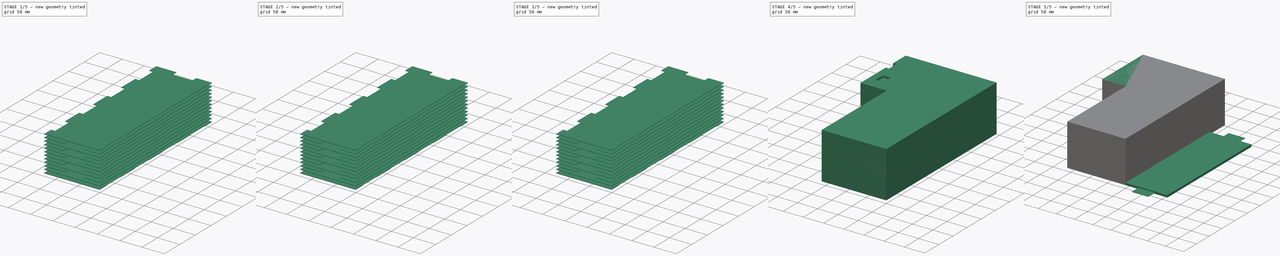
[diagram: build sequence overview — one tinted view per stage of 5, left to right]
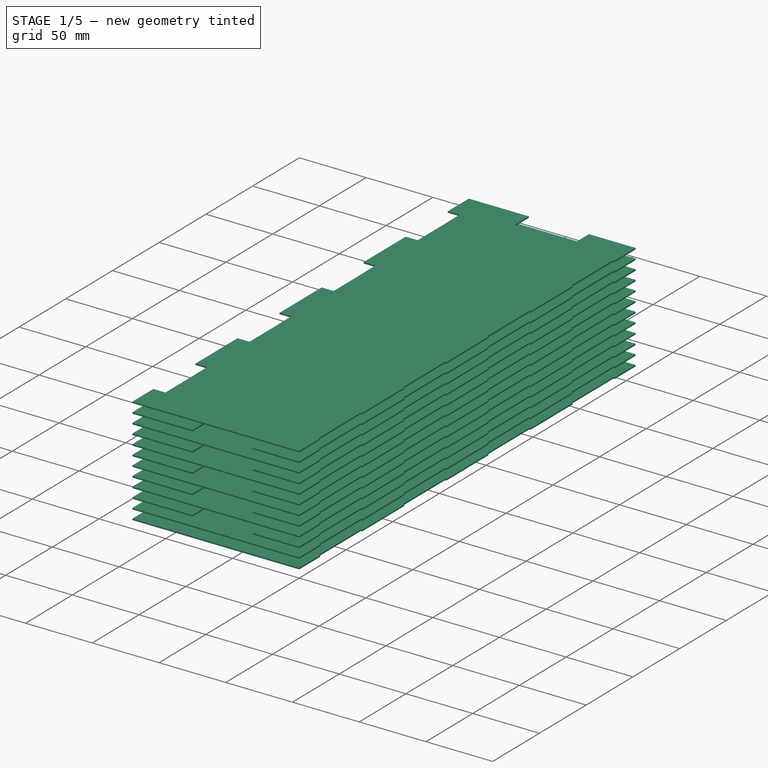
[diagram: stage 1 of 5 — iso view after this stage's code; geometry added in this stage tinted green]
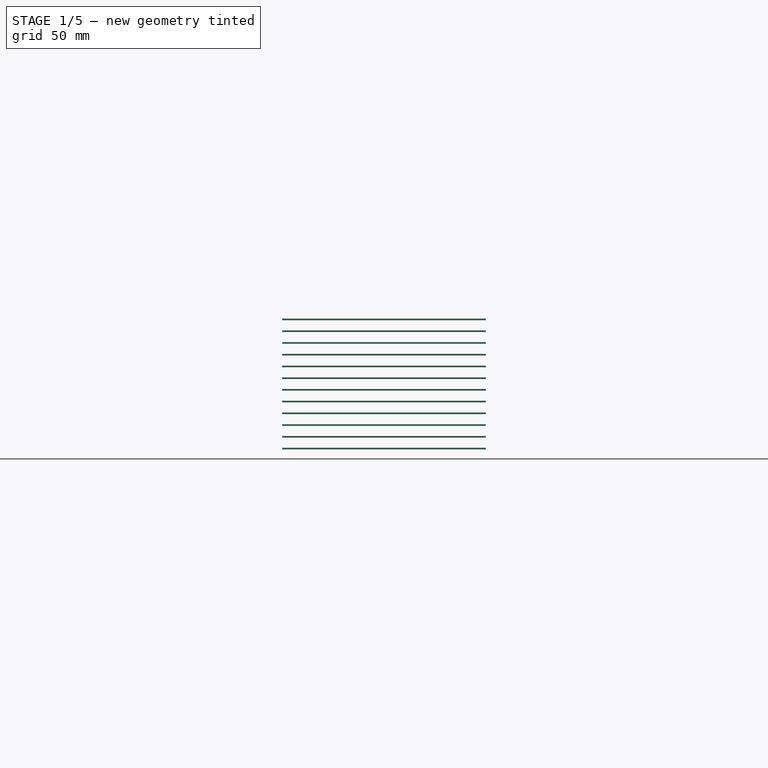
[diagram: stage 1 of 5 — front view after this stage's code; geometry added in this stage tinted green]
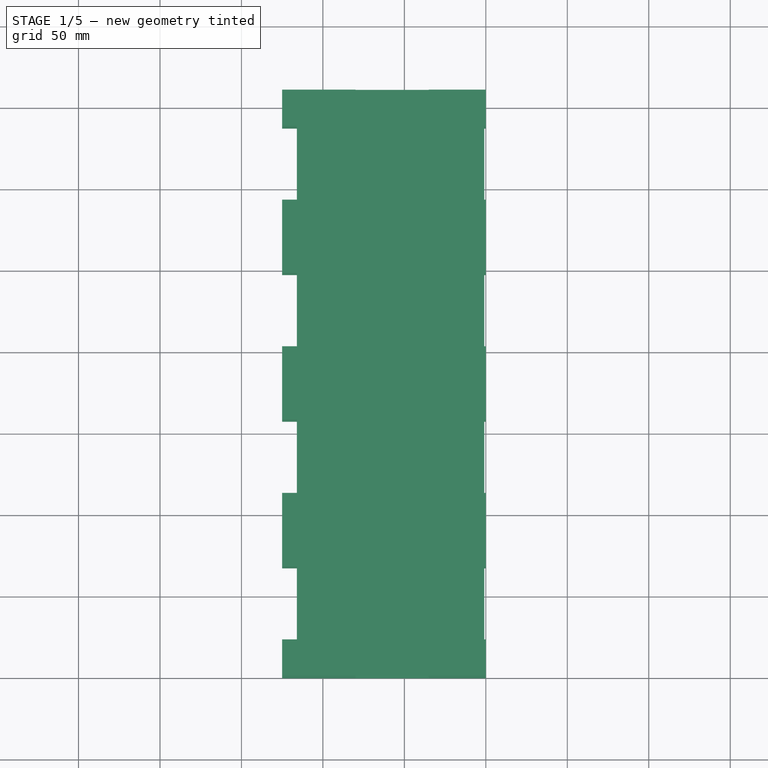
[diagram: stage 1 of 5 — top view after this stage's code; geometry added in this stage tinted green]
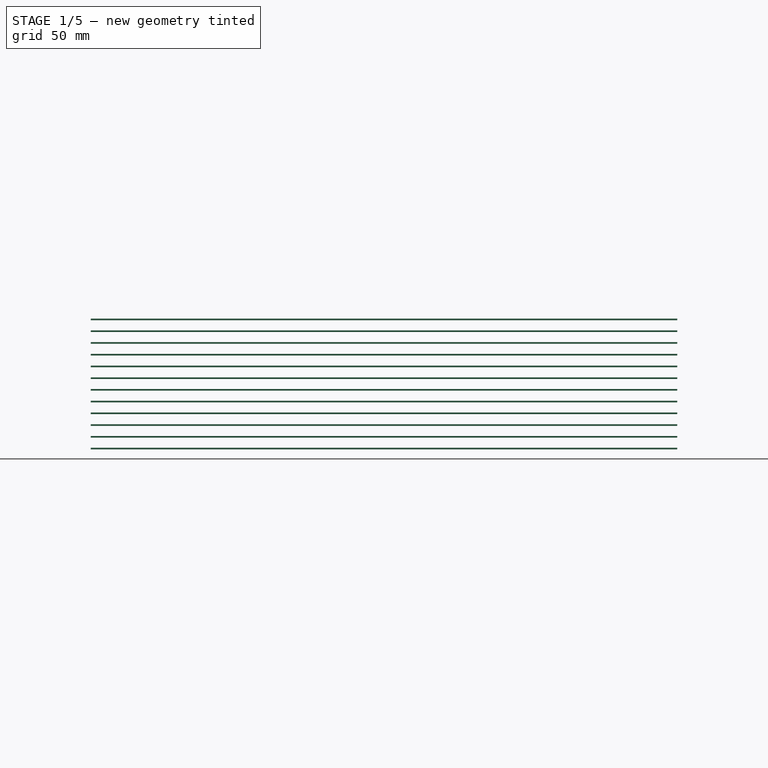
[diagram: stage 1 of 5 — right view after this stage's code; geometry added in this stage tinted green]
FCSTD DOCUMENT  (FreeCAD 0.17R13522 (Git))
Label: 电池组外壳
License: All rights reserved
LicenseURL: http://en.wikipedia.org/wiki/All_rights_reserved
objects: Drawing::FeatureViewPython×23, Part::Box×21, Part::Cut×13, Part::Feature×10, Part::FeaturePython×9, Drawing::FeatureViewPart×7, Part::Part2DObjectPython×3, Part::Cylinder×2, Part::MultiFuse×2, Drawing::FeaturePage×2, Sketcher::SketchObject×1, PartDesign::Pad×1, PartDesign::Body×1, Part::Fillet×1
note: 65 computed .brp shape members not serialized (recipe doc carries the construction recipe); baked Part::Feature solids carry a one-line shape summary decoded from their .brp

FEATURE [Part::Feature] Cut002008005001  label="单片上开口001"
  shape: bbox 125 x 360 x 1 mm, 42 faces (baked)
FEATURE [Part::Box] Box017  label="立方体014"
  AttacherType = Attacher::AttachEngine3D
  Height = 1
  Length = 1
  Placement = pos=(-1,0,0) rot=(0,0,1;0rad)
  Width = 45
FEATURE [Part::FeaturePython] Array005  # Draft array (typed FeaturePython)
  Angle = 360
  ArrayType = 0
  Axis = (0,0,1)
  Base = -> Box017
  Center = (0,0,0)
  Fuse = false
  IntervalAxis = (0,0,0)
  IntervalX = (1,0,0)
  IntervalY = (0,90,0)
  IntervalZ = (0,0,0)
  NumberPolar = 1
  NumberX = 1
  NumberY = 4
  NumberZ = 1
  Placement = pos=(0,22.5,0) rot=(0,0,1;0rad)
FEATURE [Part::Box] Box018  label="上开口001"
  AttacherType = Attacher::AttachEngine3D
  Height = 1
  Length = 45
  Placement = pos=(-80,345,0) rot=(0,0,1;0rad)
  Width = 15
FEATURE [Part::Box] Box019  label="立方体015"
  AttacherType = Attacher::AttachEngine3D
  Height = 1
  Length = 9
  Placement = pos=(-125,0,0) rot=(0,0,1;0rad)
  Width = 45
FEATURE [Part::FeaturePython] Array006  # Draft array (typed FeaturePython)
  Angle = 360
  ArrayType = 0
  Axis = (0,0,1)
  Base = -> Box019
  Center = (0,0,0)
  Fuse = false
  IntervalAxis = (0,0,0)
  IntervalX = (1,0,0)
  IntervalY = (0,90,0)
  IntervalZ = (0,0,0)
  NumberPolar = 1
  NumberX = 1
  NumberY = 4
  NumberZ = 1
  Placement = pos=(0,22.5,0) rot=(0,0,1;0rad)
FEATURE [Part::Box] Box020  label="立方体016"
  AttacherType = Attacher::AttachEngine3D
  Height = 1
  Length = 125
  Placement = pos=(-125,0,0) rot=(0,0,1;0rad)
  Width = 360
FEATURE [Part::Cut] Cut002008005004
  Base = -> Box020
  Tool = -> Array005
FEATURE [Part::Cut] Cut002008005003  label="单片不开口"
  Base = -> Cut002008005004
  Tool = -> Array006
FEATURE [Part::Feature] Cut002008005003001  label="单片不开口001"
  Placement = pos=(0,0,-8.2) rot=(0,0,1;0rad)
  shape: bbox 125 x 360 x 1 mm, 38 faces (baked)
FEATURE [Part::Feature] Cut002008005003002  label="单片不开口002"
  Placement = pos=(0,0,86.4) rot=(0,0,1;0rad)
  shape: bbox 125 x 360 x 1 mm, 38 faces (baked)
FEATURE [Part::FeaturePython] Array007  # Draft array (typed FeaturePython)
  Angle = 360
  ArrayType = 0
  Axis = (0,0,1)
  Base = -> Cut002008002
  Center = (0,0,0)
  Fuse = false
  IntervalAxis = (0,0,0)
  IntervalX = (1,0,0)
  IntervalY = (0,1,0)
  IntervalZ = (0,0,14.4)
  NumberPolar = 1
  NumberX = 1
  NumberY = 1
  NumberZ = 6
FEATURE [Part::FeaturePython] Array008  # Draft array (typed FeaturePython)
  Angle = 360
  ArrayType = 0
  Axis = (0,0,1)
  Base = -> Cut002008005001
  Center = (0,0,0)
  Fuse = false
  IntervalAxis = (0,0,0)
  IntervalX = (1,0,0)
  IntervalY = (0,1,0)
  IntervalZ = (0,0,14.4)
  NumberPolar = 1
  NumberX = 1
  NumberY = 1
  NumberZ = 6
  Placement = pos=(0,0,7.2) rot=(0,0,1;0rad)
note: 2 file-system paths scrubbed to <path> (originals preserved in the JSON sidecar)
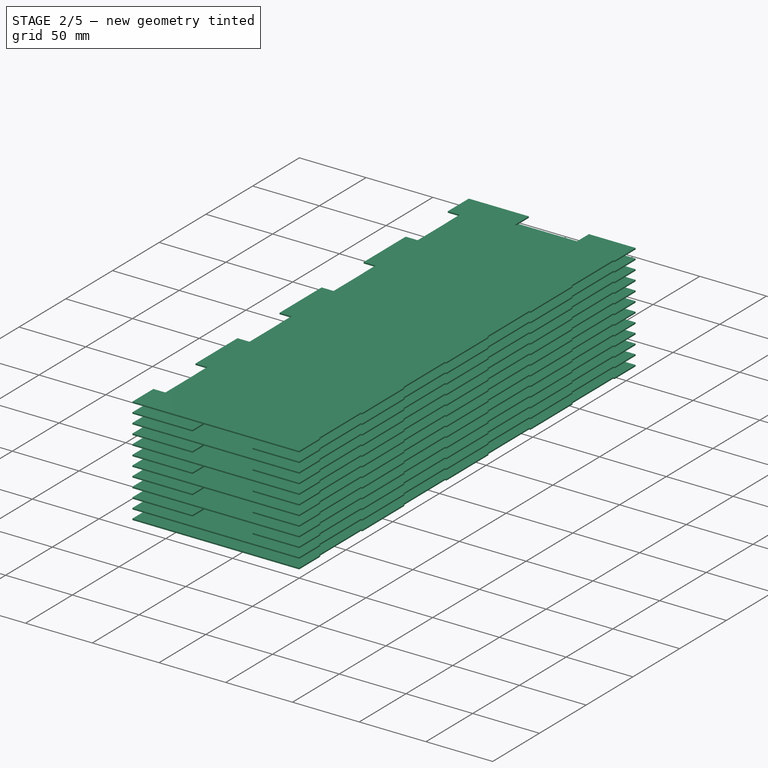
[diagram: stage 2 of 5 — iso view after this stage's code; geometry added in this stage tinted green]
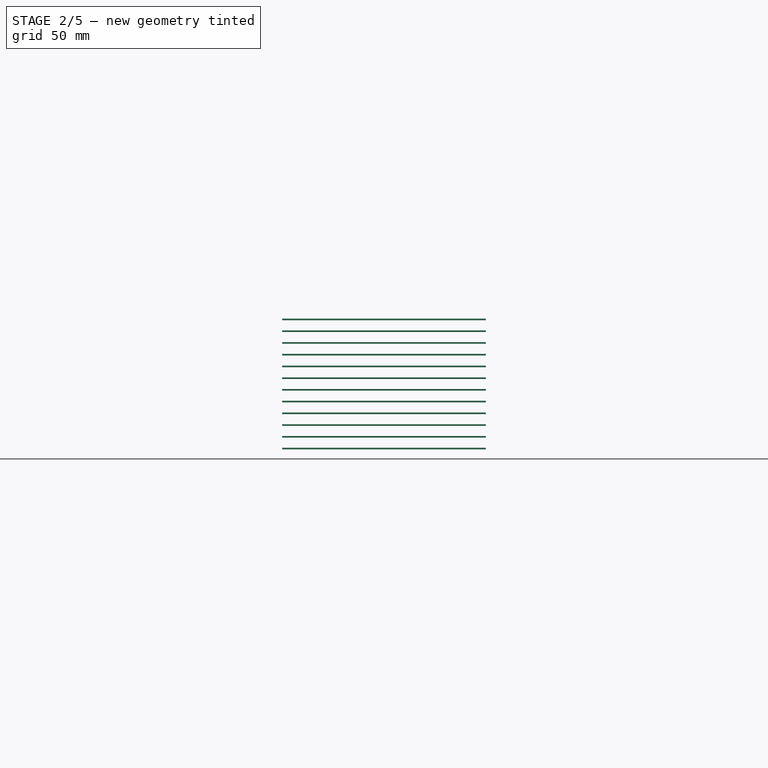
[diagram: stage 2 of 5 — front view after this stage's code; geometry added in this stage tinted green]
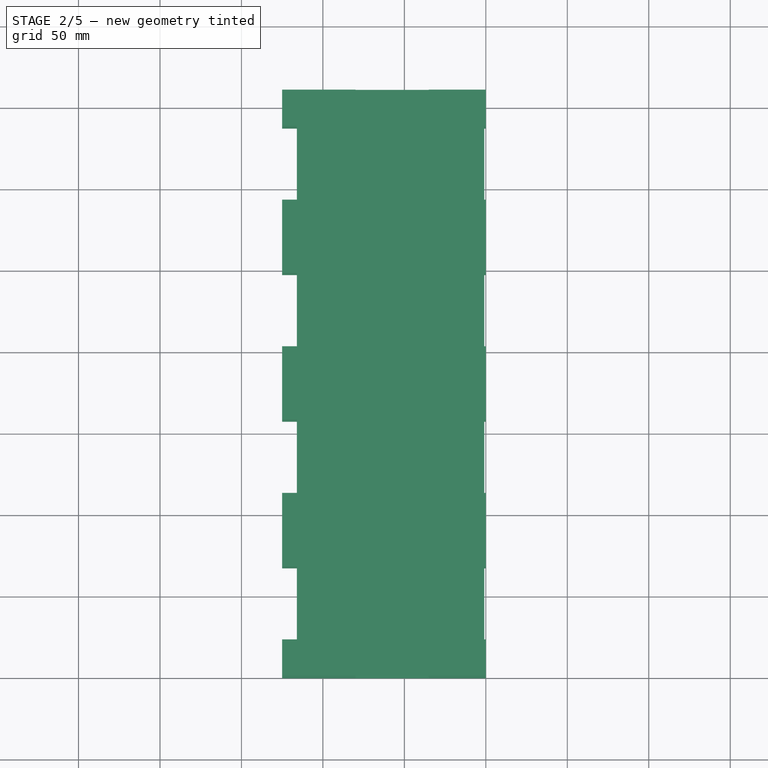
[diagram: stage 2 of 5 — top view after this stage's code; geometry added in this stage tinted green]
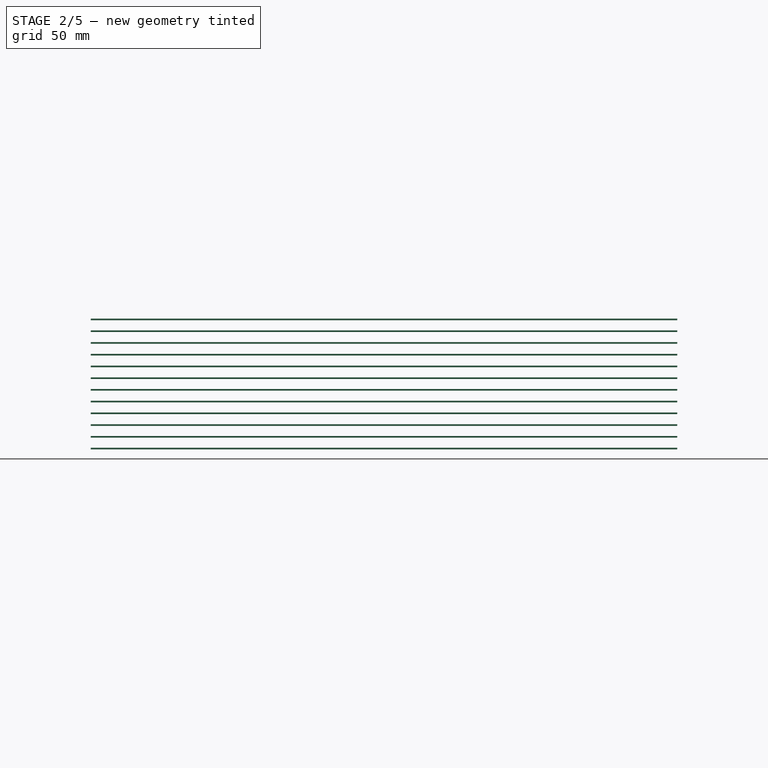
[diagram: stage 2 of 5 — right view after this stage's code; geometry added in this stage tinted green]
FEATURE [Part::Box] Box010  label="上开口"
  AttacherType = Attacher::AttachEngine3D
  Height = 1
  Length = 45
  Placement = pos=(-80,345,0) rot=(0,0,1;0rad)
  Width = 15
FEATURE [Part::Feature] Cut002008002  label="单片下开口001"
  shape: bbox 125 x 360 x 1 mm, 42 faces (baked)
FEATURE [Part::Box] Box013  label="立方体010"
  AttacherType = Attacher::AttachEngine3D
  Height = 1
  Length = 9
  Placement = pos=(-125,0,0) rot=(0,0,1;0rad)
  Width = 45
FEATURE [Part::Box] Box014  label="立方体011"
  AttacherType = Attacher::AttachEngine3D
  Height = 1
  Length = 1
  Placement = pos=(-1,0,0) rot=(0,0,1;0rad)
  Width = 45
FEATURE [Part::FeaturePython] Array003  # Draft array (typed FeaturePython)
  Angle = 360
  ArrayType = 0
  Axis = (0,0,1)
  Base = -> Box014
  Center = (0,0,0)
  Fuse = false
  IntervalAxis = (0,0,0)
  IntervalX = (1,0,0)
  IntervalY = (0,90,0)
  IntervalZ = (0,0,0)
  NumberPolar = 1
  NumberX = 1
  NumberY = 4
  NumberZ = 1
  Placement = pos=(0,22.5,0) rot=(0,0,1;0rad)
FEATURE [Part::FeaturePython] Array004  # Draft array (typed FeaturePython)
  Angle = 360
  ArrayType = 0
  Axis = (0,0,1)
  Base = -> Box013
  Center = (0,0,0)
  Fuse = false
  IntervalAxis = (0,0,0)
  IntervalX = (1,0,0)
  IntervalY = (0,90,0)
  IntervalZ = (0,0,0)
  NumberPolar = 1
  NumberX = 1
  NumberY = 4
  NumberZ = 1
  Placement = pos=(0,22.5,0) rot=(0,0,1;0rad)
FEATURE [Part::Box] Box015  label="下开口"
  AttacherType = Attacher::AttachEngine3D
  Height = 1
  Length = 45
  Placement = pos=(-80,0,0) rot=(0,0,1;0rad)
  Width = 15
FEATURE [Part::Box] Box016  label="立方体013"
  AttacherType = Attacher::AttachEngine3D
  Height = 1
  Length = 125
  Placement = pos=(-125,0,0) rot=(0,0,1;0rad)
  Width = 360
FEATURE [Part::Cut] Cut002008003
  Base = -> Box016
  Tool = -> Array003
FEATURE [Part::Cut] Cut002008004
  Base = -> Cut002008003
  Tool = -> Array004
FEATURE [Part::Cut] Cut002008005  label="单片上开口"
  Base = -> Cut002008004
  Tool = -> Box010
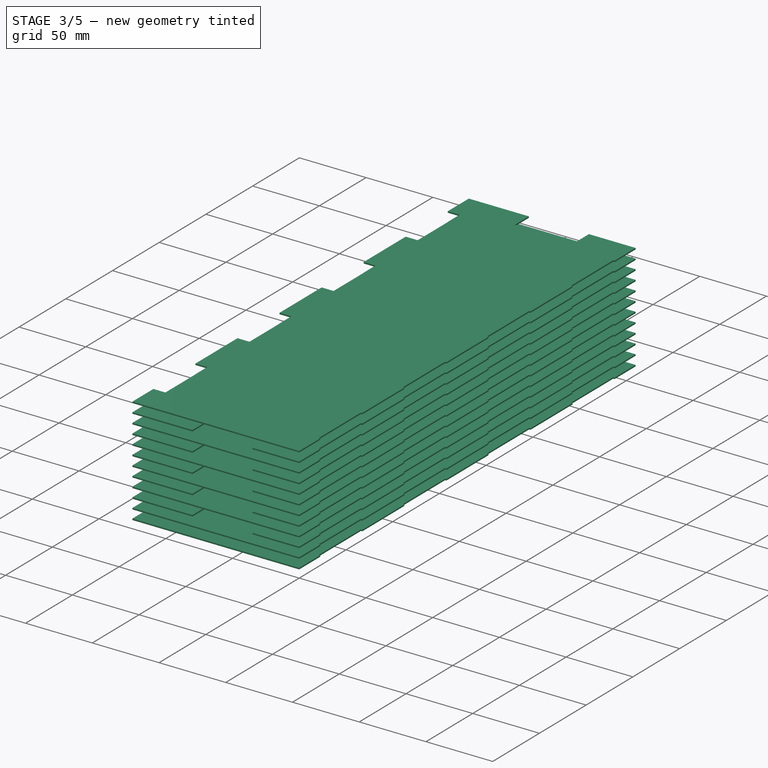
[diagram: stage 3 of 5 — iso view after this stage's code; geometry added in this stage tinted green]
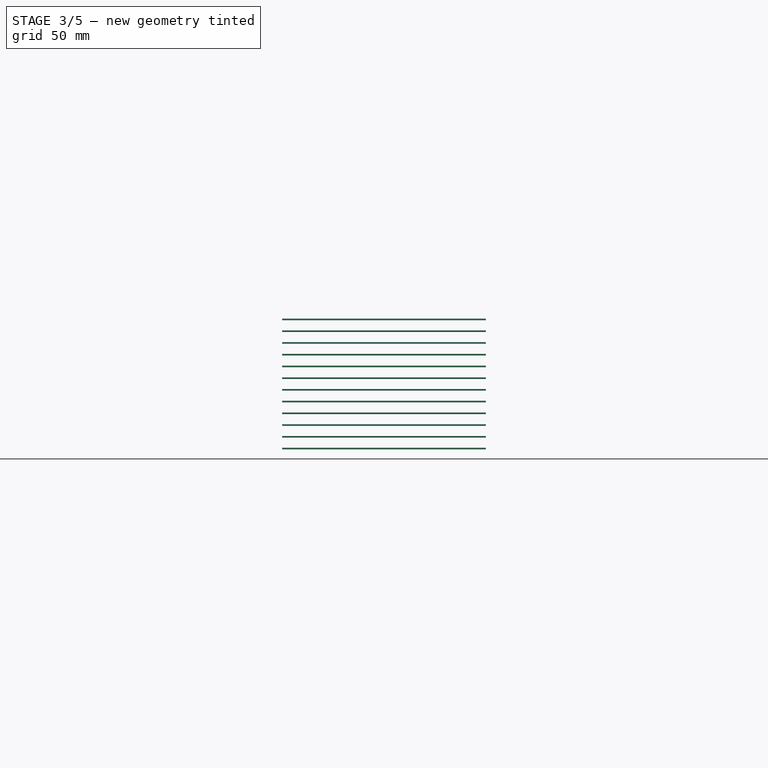
[diagram: stage 3 of 5 — front view after this stage's code; geometry added in this stage tinted green]
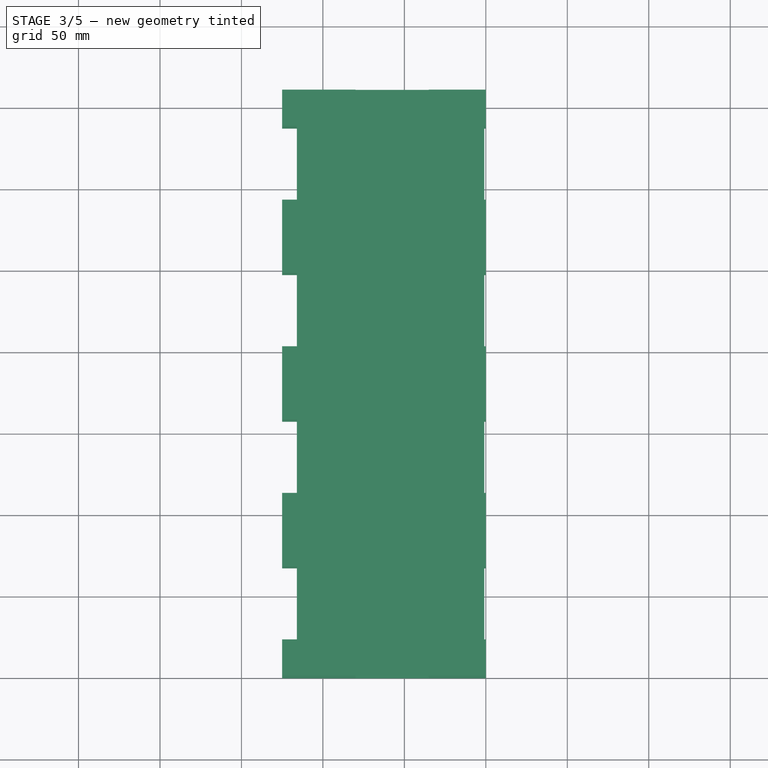
[diagram: stage 3 of 5 — top view after this stage's code; geometry added in this stage tinted green]
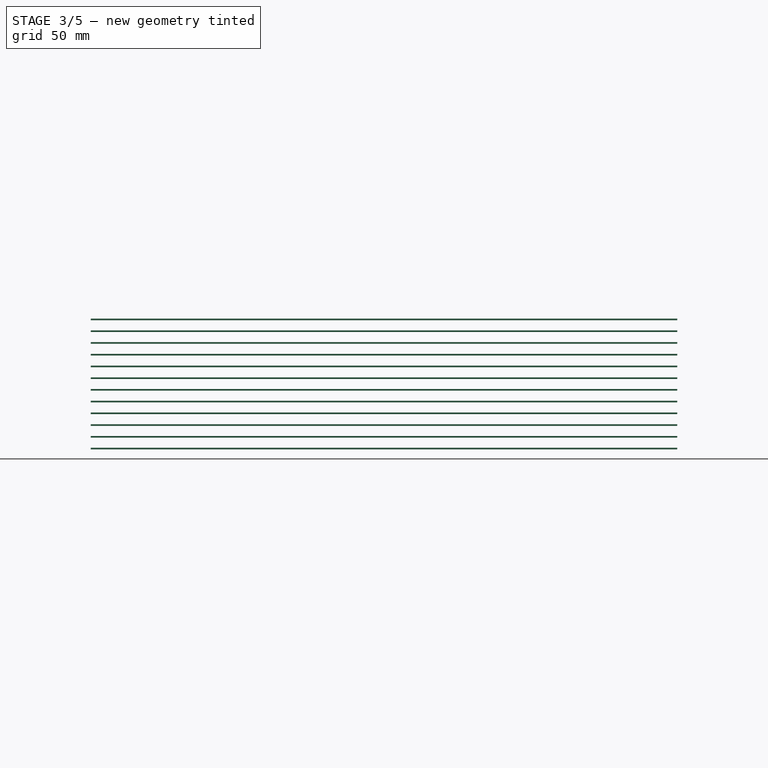
[diagram: stage 3 of 5 — right view after this stage's code; geometry added in this stage tinted green]
FEATURE [Part::Box] Box008  label="立方体005"
  AttacherType = Attacher::AttachEngine3D
  Height = 1
  Length = 125
  Placement = pos=(-125,0,0) rot=(0,0,1;0rad)
  Width = 360
FEATURE [Part::Box] Box009  label="立方体006"
  AttacherType = Attacher::AttachEngine3D
  Height = 1
  Length = 45
  Placement = pos=(-80,0,0) rot=(0,0,1;0rad)
  Width = 15
FEATURE [Part::Box] Box011  label="立方体008"
  AttacherType = Attacher::AttachEngine3D
  Height = 1
  Length = 1
  Placement = pos=(-1,0,0) rot=(0,0,1;0rad)
  Width = 45
FEATURE [Part::Box] Box012  label="立方体009"
  AttacherType = Attacher::AttachEngine3D
  Height = 1
  Length = 9
  Placement = pos=(-125,0,0) rot=(0,0,1;0rad)
  Width = 45
FEATURE [Part::FeaturePython] Array001  # Draft array (typed FeaturePython)
  Angle = 360
  ArrayType = 0
  Axis = (0,0,1)
  Base = -> Box012
  Center = (0,0,0)
  Fuse = false
  IntervalAxis = (0,0,0)
  IntervalX = (1,0,0)
  IntervalY = (0,90,0)
  IntervalZ = (0,0,0)
  NumberPolar = 1
  NumberX = 1
  NumberY = 4
  NumberZ = 1
  Placement = pos=(0,22.5,0) rot=(0,0,1;0rad)
FEATURE [Part::FeaturePython] Array002  # Draft array (typed FeaturePython)
  Angle = 360
  ArrayType = 0
  Axis = (0,0,1)
  Base = -> Box011
  Center = (0,0,0)
  Fuse = false
  IntervalAxis = (0,0,0)
  IntervalX = (1,0,0)
  IntervalY = (0,90,0)
  IntervalZ = (0,0,0)
  NumberPolar = 1
  NumberX = 1
  NumberY = 4
  NumberZ = 1
  Placement = pos=(0,22.5,0) rot=(0,0,1;0rad)
FEATURE [Part::Cut] Cut002006
  Base = -> Box008
  Tool = -> Box009
FEATURE [Part::Cut] Cut002007
  Base = -> Cut002006
  Tool = -> Array002
FEATURE [Part::Cut] Cut002008  label="单片下开口"
  Base = -> Cut002007
  Tool = -> Array001
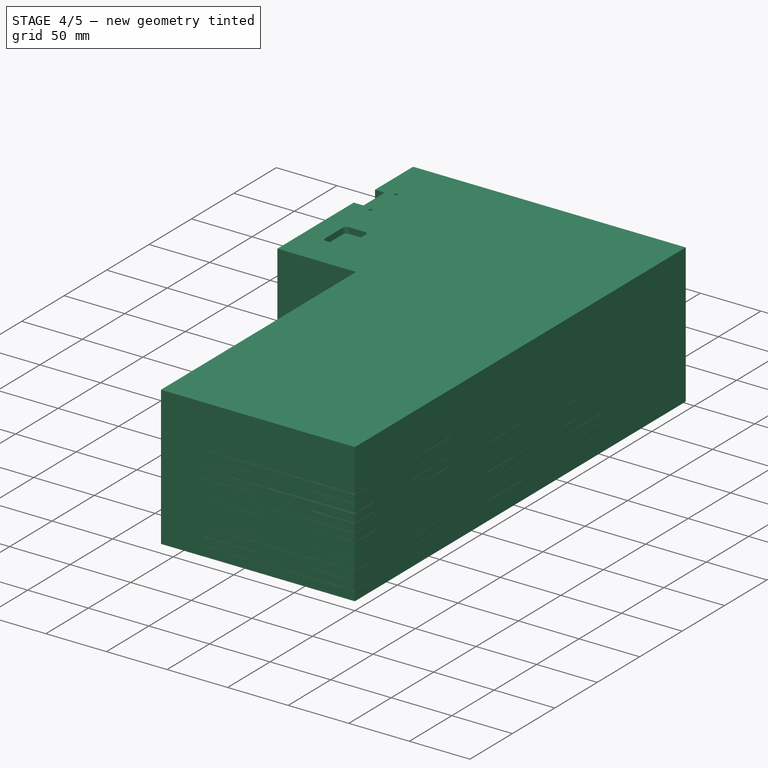
[diagram: stage 4 of 5 — iso view after this stage's code; geometry added in this stage tinted green]
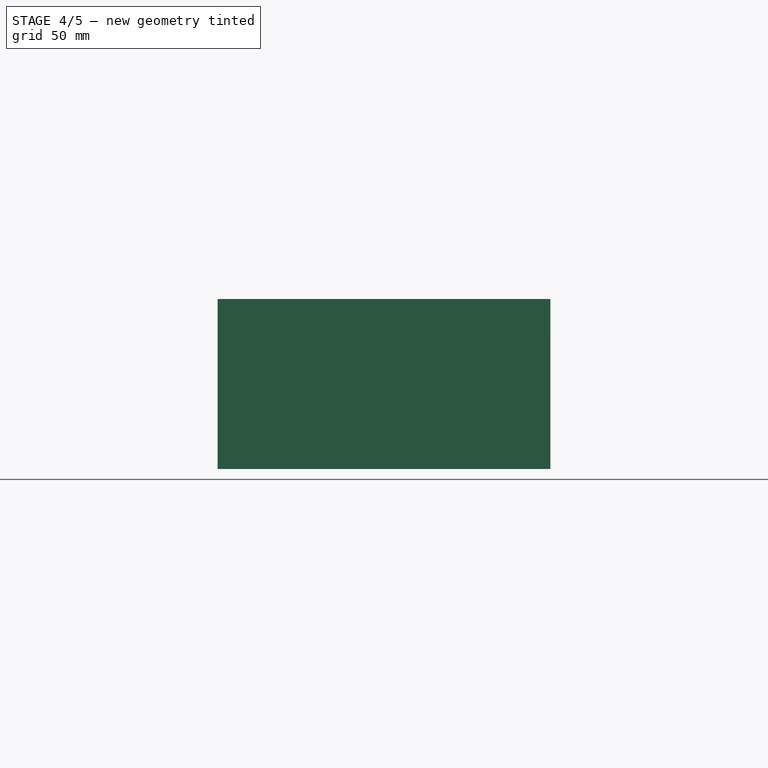
[diagram: stage 4 of 5 — front view after this stage's code; geometry added in this stage tinted green]
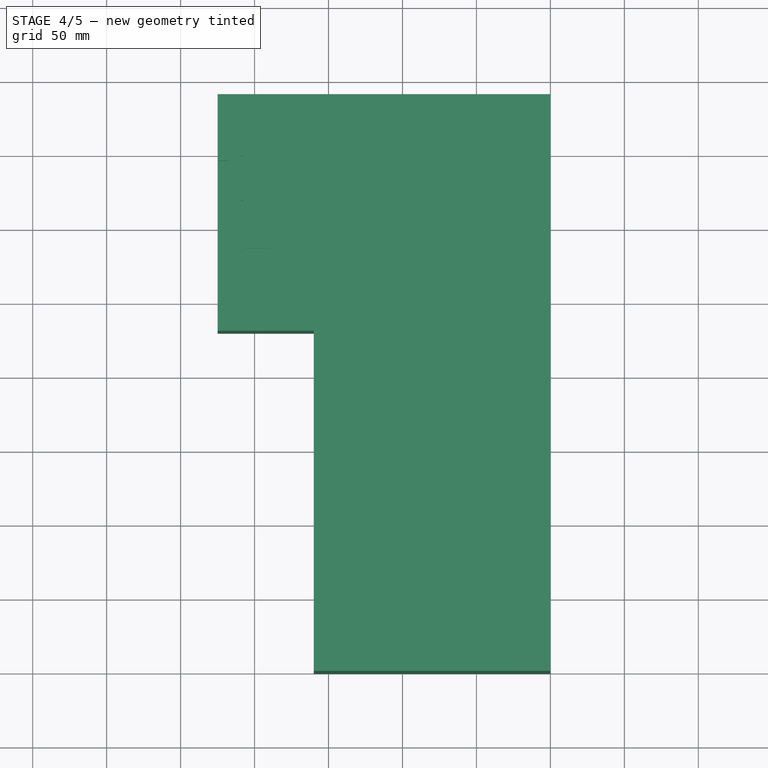
[diagram: stage 4 of 5 — top view after this stage's code; geometry added in this stage tinted green]
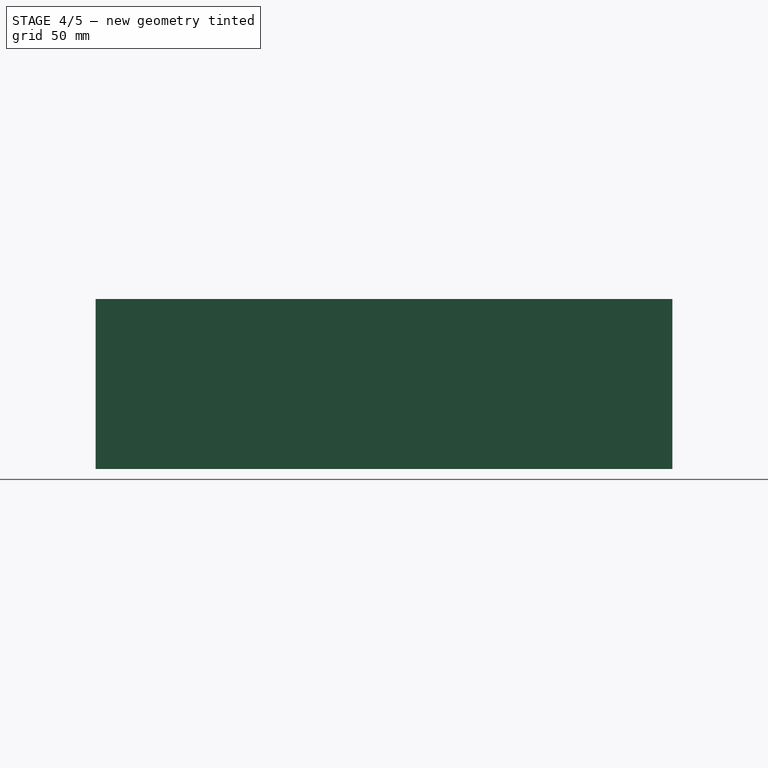
[diagram: stage 4 of 5 — right view after this stage's code; geometry added in this stage tinted green]
FEATURE [Part::Feature] Body001  label="Body003"
  shape: bbox 225 x 390 x 115 mm, 8 faces (baked)
FEATURE [Part::Box] Box002  label="蓝牙开孔"
  AttacherType = Attacher::AttachEngine3D
  Height = 8
  Length = 8
  Placement = pos=(-225,320,107) rot=(0,0,1;0rad)
  Width = 25
FEATURE [Part::Feature] Fusion001  label="蓝牙开孔001"
  Placement = pos=(-1,-3,0) rot=(0,0,1;0rad)
  shape: bbox 3 x 33 x 10 mm, 6 faces, 2 solids (baked)
FEATURE [Part::Feature] Fusion002  label="蓝牙开孔002"
  Placement = pos=(-110,-3,300) rot=(0,-1,0;1.5708rad)
  shape: bbox 10 x 33 x 3 mm, 6 faces, 2 solids (baked)
FEATURE [Part::Feature] Cut002001  label="Body001"
  shape: bbox 225 x 390 x 115 mm, 20 faces (baked)
FEATURE [Part::Part2DObjectPython] Shape2DView  # Draft 2D object (typed FeaturePython)
  Base = -> Cut002001
  FaceNumbers = [4]
  HiddenLines = false
  InPlace = true
  Projection = (0,0,1)
  ProjectionMode = 0
  SegmentLength = 0.05
  Tessellation = false
  VisibleOnly = false
FEATURE [Part::Part2DObjectPython] Shape2DView001  # Draft 2D object (typed FeaturePython)
  Base = -> Cut002001
  HiddenLines = false
  InPlace = true
  Placement = pos=(0,0,0) rot=(0,0,1;3.14159rad)
  Projection = (-1,0,0)
  ProjectionMode = 0
  SegmentLength = 0.05
  Tessellation = false
  VisibleOnly = false
FEATURE [Part::Part2DObjectPython] Shape2DView002  # Draft 2D object (typed FeaturePython)
  Base = -> User_Library_Power_outlet_with_flange_230V_AC
  HiddenLines = false
  InPlace = true
  Projection = (0,0,1)
  ProjectionMode = 0
  SegmentLength = 0.05
  Tessellation = false
  VisibleOnly = false
FEATURE [Drawing::FeatureViewPart] Ortho  label="Ortho_0_0"
  Direction = (0,0,1)
  HiddenWidth = 0.15
  LineWidth = 0.35
  Rotation = 0
  Scale = 0.25
  ShowHiddenLines = false
  ShowSmoothLines = false
  Source = -> Cut002001
  Tolerance = 0.05
  ViewResult = <g id="Ortho_0_0"\n   transform="rotate(0,187,167.25) translate(187,167.25) scale(0.25,0.25)"\n  >\n<g   fill="none"\n   stroke="rgb(0, 0, 0)"\n   stroke-linecap="butt"\n   stroke-linejoin="miter"\n   stroke-width="1.400000"\n   transform="scale(1,-1)"\n  >\n<path id= "1" d=" M 0 0 L 0 390 " />\n<path id= "2" d=" M 0 0 L -160 0 " />\n<path id= "3" d=" M 0 390 L -225 390 " />\n<path id= "4" d=" M -160 0 L -160 230 " />\n<path id= "5" d=" M -160 230 L -225 230 " />\n<path id= "6" d=" M -225 390 L -225 345 " />\n<path id= "7" d=" M -225 320 L -225 230 " />\n<path id= "8" d=" M -225 345 L -217 345 " />\n<path id= "9" d=" M -225 320 L -217 320 " />\n<path id= "10" d=" M -217 320 L -217 345 " />\n<circle cx ="-209" cy ="347" r ="1.5" /><circle cx ="-209" cy ="317" r ="1.5" /><path id= "13" d=" M -225 320 L -225 345 " />\n</g>\n</g>
  Visible = false
  X = 187
  Y = 167.25
FEATURE [Drawing::FeatureViewPart] Ortho001  label="Ortho_-1_0"
  Direction = (-1,0,0)
  HiddenWidth = 0.15
  LineWidth = 0.35
  Rotation = 180
  Scale = 0.25
  ShowHiddenLines = false
  ShowSmoothLines = false
  Source = -> Cut002001
  Tolerance = 0.05
  ViewResult = <g id="Ortho_-1_0"\n   transform="rotate(180,56,167.25) translate(56,167.25) scale(0.25,0.25)"\n  >\n<g   fill="none"\n   stroke="rgb(0, 0, 0)"\n   stroke-linecap="butt"\n   stroke-linejoin="miter"\n   stroke-width="1.400000"\n   transform="scale(1,-1)"\n  >\n<path id= "1" d=" M 0 0 L -115 0 " />\n<path id= "2" d=" M 0 -390 L -115 -390 " />\n<path id= "3" d=" M 0 -390 L 0 -230 " />\n<path id= "4" d=" M 0 0 L 0 -230 " />\n<path id= "5" d=" M -115 0 L -115 -230 " />\n<path id= "6" d=" M -115 -390 L -115 -345 " />\n<path id= "7" d=" M -115 -320 L -115 -230 " />\n<path id= "8" d=" M -115 -320 L -115 -345 " />\n<path id= "9" d=" M 0 -230 L -115 -230 " />\n<path id= "10" d=" M -107 -345 L -115 -345 " />\n<path id= "11" d=" M -107 -320 L -115 -320 " />\n<path id= "12" d=" M -107 -320 L -107 -345 " />\n<circle cx ="-92" cy ="-347" r ="1.5" /><circle cx ="-92" cy ="-317" r ="1.5" /></g>\n</g>
  Visible = false
  X = 56
  Y = 167.25
FEATURE [Drawing::FeatureViewPart] Ortho002  label="Ortho_1_0"
  Direction = (1,0,0)
  HiddenWidth = 0.15
  LineWidth = 0.35
  Rotation = 180
  Scale = 0.25
  ShowHiddenLines = false
  ShowSmoothLines = false
  Source = -> Cut002001
  Tolerance = 0.05
  ViewResult = <g id="Ortho_1_0"\n   transform="rotate(180,261.75,167.25) translate(261.75,167.25) scale(0.25,0.25)"\n  >\n<g   fill="none"\n   stroke="rgb(0, 0, 0)"\n   stroke-linecap="butt"\n   stroke-linejoin="miter"\n   stroke-width="1.400000"\n   transform="scale(1,-1)"\n  >\n<path id= "1" d=" M 0 0 L 115 0 " />\n<path id= "2" d=" M 0 -390 L 115 -390 " />\n<path id= "3" d=" M 0 0 L 0 -390 " />\n<path id= "4" d=" M 115 0 L 115 -390 " />\n</g>\n</g>
  Visible = false
  X = 261.75
  Y = 167.25
FEATURE [Drawing::FeatureViewPart] Ortho003  label="Ortho_0_1"
  Direction = (0,1,0)
  HiddenWidth = 0.15
  LineWidth = 0.35
  Rotation = 90
  Scale = 0.25
  ShowHiddenLines = false
  ShowSmoothLines = false
  Source = -> Cut002001
  Tolerance = 0.05
  ViewResult = <g id="Ortho_0_1"\n   transform="rotate(90,187,25.5) translate(187,25.5) scale(0.25,0.25)"\n  >\n<g   fill="none"\n   stroke="rgb(0, 0, 0)"\n   stroke-linecap="butt"\n   stroke-linejoin="miter"\n   stroke-width="1.400000"\n   transform="scale(1,-1)"\n  >\n<path id= "1" d=" M 0 0 L 115 0 " />\n<path id= "2" d=" M 0 -225 L 115 -225 " />\n<path id= "3" d=" M 0 0 L 0 -225 " />\n<path id= "4" d=" M 115 0 L 115 -225 " />\n</g>\n</g>
  Visible = false
  X = 187
  Y = 25.5
FEATURE [Drawing::FeatureViewPart] Ortho004  label="Ortho_0_-1"
  Direction = (0,-1,0)
  HiddenWidth = 0.15
  LineWidth = 0.35
  Rotation = 90
  Scale = 0.25
  ShowHiddenLines = false
  ShowSmoothLines = false
  Source = -> Cut002001
  Tolerance = 0.05
  ViewResult = <g id="Ortho_0_-1"\n   transform="rotate(90,187,211.5) translate(187,211.5) scale(0.25,0.25)"\n  >\n<g   fill="none"\n   stroke="rgb(0, 0, 0)"\n   stroke-linecap="butt"\n   stroke-linejoin="miter"\n   stroke-width="1.400000"\n   transform="scale(1,-1)"\n  >\n<path id= "1" d=" M 0 0 L -115 0 " />\n<path id= "2" d=" M 0 -160 L -115 -160 " />\n<path id= "3" d=" M 0 0 L 0 -160 " />\n<path id= "4" d=" M -115 0 L -115 -160 " />\n<path id= "5" d=" M 0 -160 L 0 -225 " />\n<path id= "6" d=" M -115 -160 L -115 -225 " />\n<path id= "7" d=" M 0 -225 L -115 -225 " />\n</g>\n</g>
  Visible = false
  X = 187
  Y = 211.5
FEATURE [Drawing::FeatureViewPart] Ortho005  label="Ortho_2_0"
  Direction = (0,0,-1)
  HiddenWidth = 0.15
  LineWidth = 0.35
  Rotation = 0
  Scale = 0.25
  ShowHiddenLines = false
  ShowSmoothLines = false
  Source = -> Cut002001
  Tolerance = 0.05
  ViewResult = <g id="Ortho_2_0"\n   transform="rotate(-7.01671e-15,307.75,167.25) translate(307.75,167.25) scale(0.25,0.25)"\n  >\n<g   fill="none"\n   stroke="rgb(0, 0, 0)"\n   stroke-linecap="butt"\n   stroke-linejoin="miter"\n   stroke-width="1.400000"\n   transform="scale(1,-1)"\n  >\n<path id= "1" d=" M 0 0 L 0 390 " />\n<path id= "2" d=" M 0 0 L 160 0 " />\n<path id= "3" d=" M 0 390 L 225 390 " />\n<path id= "4" d=" M 225 390 L 225 230 " />\n<path id= "5" d=" M 160 230 L 225 230 " />\n<path id= "6" d=" M 160 0 L 160 230 " />\n</g>\n</g>
  Visible = false
  X = 307.75
  Y = 167.25
FEATURE [Drawing::FeatureViewPart] Ortho006  label="Ortho_0_002"
  Direction = (0,0,1)
  HiddenWidth = 0.15
  LineWidth = 0.35
  Rotation = 0
  Scale = 0.2
  ShowHiddenLines = false
  ShowSmoothLines = false
  Source = -> User_Library_Power_outlet_with_flange_230V_AC
  Tolerance = 0.05
  ViewResult = <blob: 30129 chars omitted>
  Visible = false
  X = 176
  Y = 154
FEATURE [Drawing::FeatureViewPython] dim001  # drawing view (typed FeaturePython)
  Rotation = 0
  ViewResult = <g> \n  <line x1="54.000000" y1="69.750000" x2="45.969697" y2="69.750000" style="stroke:rgb(0,0,255);stroke-width:0.50" />\n<line x1="54.000000" y1="109.750000" x2="45.969697" y2="109.750000" style="stroke:rgb(0,0,255);stroke-width:0.50" />\n<line x1="46.969697" y1="69.750000" x2="46.969697" y2="109.750000" style="stroke:rgb(0,0,255);stroke-width:0.50" /> \n  <polygon points="46.969697,109.750000 47.969697,106.750000 46.969697,105.750000 45.969697,106.750000" style="fill:rgb(0,0,255);stroke:rgb(0,0,255);stroke-width:0" /><polygon points="46.969697,69.750000 45.969697,72.750000 46.969697,73.750000 47.969697,72.750000" style="fill:rgb(0,0,255);stroke:rgb(0,0,255);stroke-width:0" /> \n  <text x="44.969697" y="89.750000" font-family="inherit" font-size="3.6" fill="rgb(0,0,255)" text-anchor="middle" transform="rotate(-90.000000 44.969697,89.750000)" >160</text> </g>
  Visible = false
  X = 0
  Y = 0
  arrowL1 = 3
  arrowL2 = 1
  arrowW = 2
  arrow_scheme = 0
  autoPlaceOffset = 2
  autoPlaceText = true
  click1_x = 46.9697
  click1_y = 89.5633
  click2_x = 46.9697
  click2_y = 89.5633
  comma_decimal_place = false
  dimension_line_overshoot = 1
  gap_datum_points = 2
  halfDimension_linear = false
  lineColor = rgb(0,0,255)
  strokeWidth = 0.5
  textFormat_linear = %(value)3.3f
  textRenderer_color = rgb(0,0,255)
  textRenderer_family = inherit
  textRenderer_size = 3.6
  unit_custom_scale = 1
  unit_scheme = 0
FEATURE [Drawing::FeatureViewPython] dim002  # drawing view (typed FeaturePython)
  Rotation = 0
  ViewResult = <g> \n  <line x1="56.000000" y1="67.750000" x2="56.000000" y2="59.097873" style="stroke:rgb(0,0,255);stroke-width:0.50" />\n<line x1="84.750000" y1="67.750000" x2="84.750000" y2="59.097873" style="stroke:rgb(0,0,255);stroke-width:0.50" />\n<line x1="56.000000" y1="60.097873" x2="84.750000" y2="60.097873" style="stroke:rgb(0,0,255);stroke-width:0.50" /> \n  <polygon points="84.750000,60.097873 81.750000,59.097873 80.750000,60.097873 81.750000,61.097873" style="fill:rgb(0,0,255);stroke:rgb(0,0,255);stroke-width:0" /><polygon points="56.000000,60.097873 59.000000,61.097873 60.000000,60.097873 59.000000,59.097873" style="fill:rgb(0,0,255);stroke:rgb(0,0,255);stroke-width:0" /> \n  <text x="70.375000" y="58.097873" font-family="inherit" font-size="3.6" fill="rgb(0,0,255)" text-anchor="middle" transform="rotate(0.000000 70.375000,58.097873)" >115</text> </g>
  Visible = false
  X = 0
  Y = 0
  arrowL1 = 3
  arrowL2 = 1
  arrowW = 2
  arrow_scheme = 0
  autoPlaceOffset = 2
  autoPlaceText = true
  click1_x = 68.2665
  click1_y = 60.0979
  click2_x = 68.2665
  click2_y = 60.0979
  comma_decimal_place = false
  dimension_line_overshoot = 1
  gap_datum_points = 2
  halfDimension_linear = false
  lineColor = rgb(0,0,255)
  strokeWidth = 0.5
  textFormat_linear = %(value)3.3f
  textRenderer_color = rgb(0,0,255)
  textRenderer_family = inherit
  textRenderer_size = 3.6
  unit_custom_scale = 1
  unit_scheme = 0
FEATURE [Drawing::FeatureViewPython] dim003  # drawing view (typed FeaturePython)
  Rotation = 0
  ViewResult = <g> \n  <line x1="128.750000" y1="25.500000" x2="115.647482" y2="25.500000" style="stroke:rgb(0,0,255);stroke-width:0.50" />\n<line x1="128.750000" y1="54.250000" x2="115.647482" y2="54.250000" style="stroke:rgb(0,0,255);stroke-width:0.50" />\n<line x1="116.647482" y1="25.500000" x2="116.647482" y2="54.250000" style="stroke:rgb(0,0,255);stroke-width:0.50" /> \n  <polygon points="116.647482,54.250000 117.647482,51.250000 116.647482,50.250000 115.647482,51.250000" style="fill:rgb(0,0,255);stroke:rgb(0,0,255);stroke-width:0" /><polygon points="116.647482,25.500000 115.647482,28.500000 116.647482,29.500000 117.647482,28.500000" style="fill:rgb(0,0,255);stroke:rgb(0,0,255);stroke-width:0" /> \n  <text x="114.647482" y="39.875000" font-family="inherit" font-size="3.6" fill="rgb(0,0,255)" text-anchor="middle" transform="rotate(-90.000000 114.647482,39.875000)" >115</text> </g>
  Visible = false
  X = 0
  Y = 0
  arrowL1 = 3
  arrowL2 = 1
  arrowW = 2
  arrow_scheme = 0
  autoPlaceOffset = 2
  autoPlaceText = true
  click1_x = 116.647
  click1_y = 40.7467
  click2_x = 116.647
  click2_y = 40.7467
  comma_decimal_place = false
  dimension_line_overshoot = 1
  gap_datum_points = 2
  halfDimension_linear = false
  lineColor = rgb(0,0,255)
  strokeWidth = 0.5
  textFormat_linear = %(value)3.3f
  textRenderer_color = rgb(0,0,255)
  textRenderer_family = inherit
  textRenderer_size = 3.6
  unit_custom_scale = 1
  unit_scheme = 0
FEATURE [Drawing::FeatureViewPython] dim004  # drawing view (typed FeaturePython)
  Rotation = 0
  ViewResult = <g> \n  <line x1="187.000000" y1="23.500000" x2="187.000000" y2="20.571795" style="stroke:rgb(0,0,255);stroke-width:0.50" />\n<line x1="130.750000" y1="23.500000" x2="130.750000" y2="20.571795" style="stroke:rgb(0,0,255);stroke-width:0.50" />\n<line x1="187.000000" y1="21.571795" x2="130.750000" y2="21.571795" style="stroke:rgb(0,0,255);stroke-width:0.50" /> \n  <polygon points="130.750000,21.571795 133.750000,22.571795 134.750000,21.571795 133.750000,20.571795" style="fill:rgb(0,0,255);stroke:rgb(0,0,255);stroke-width:0" /><polygon points="187.000000,21.571795 184.000000,20.571795 183.000000,21.571795 184.000000,22.571795" style="fill:rgb(0,0,255);stroke:rgb(0,0,255);stroke-width:0" /> \n  <text x="158.875000" y="19.571795" font-family="inherit" font-size="3.6" fill="rgb(0,0,255)" text-anchor="middle" transform="rotate(0.000000 158.875000,19.571795)" >225</text> </g>
  Visible = false
  X = 0
  Y = 0
  arrowL1 = 3
  arrowL2 = 1
  arrowW = 2
  arrow_scheme = 0
  autoPlaceOffset = 2
  autoPlaceText = true
  click1_x = 153.133
  click1_y = 21.5718
  click2_x = 153.133
  click2_y = 21.5718
  comma_decimal_place = false
  dimension_line_overshoot = 1
  gap_datum_points = 2
  halfDimension_linear = false
  lineColor = rgb(0,0,255)
  strokeWidth = 0.5
  textFormat_linear = %(value)3.3f
  textRenderer_color = rgb(0,0,255)
  textRenderer_family = inherit
  textRenderer_size = 3.6
  unit_custom_scale = 1
  unit_scheme = 0
FEATURE [Drawing::FeatureViewPython] dim005  # drawing view (typed FeaturePython)
  Rotation = 0
  ViewResult = <g> \n  <line x1="261.750000" y1="67.750000" x2="261.750000" y2="61.638100" style="stroke:rgb(0,0,255);stroke-width:0.50" />\n<line x1="233.000000" y1="67.750000" x2="233.000000" y2="61.638100" style="stroke:rgb(0,0,255);stroke-width:0.50" />\n<line x1="261.750000" y1="62.638100" x2="233.000000" y2="62.638100" style="stroke:rgb(0,0,255);stroke-width:0.50" /> \n  <polygon points="233.000000,62.638100 236.000000,63.638100 237.000000,62.638100 236.000000,61.638100" style="fill:rgb(0,0,255);stroke:rgb(0,0,255);stroke-width:0" /><polygon points="261.750000,62.638100 258.750000,61.638100 257.750000,62.638100 258.750000,63.638100" style="fill:rgb(0,0,255);stroke:rgb(0,0,255);stroke-width:0" /> \n  <text x="247.375000" y="60.638100" font-family="inherit" font-size="3.6" fill="rgb(0,0,255)" text-anchor="middle" transform="rotate(0.000000 247.375000,60.638100)" >115</text> </g>
  Visible = false
  X = 0
  Y = 0
  arrowL1 = 3
  arrowL2 = 1
  arrowW = 2
  arrow_scheme = 0
  autoPlaceOffset = 2
  autoPlaceText = true
  click1_x = 244.161
  click1_y = 62.6381
  click2_x = 244.161
  click2_y = 62.6381
  comma_decimal_place = false
  dimension_line_overshoot = 1
  gap_datum_points = 2
  halfDimension_linear = false
  lineColor = rgb(0,0,255)
  strokeWidth = 0.5
  textFormat_linear = %(value)3.3f
  textRenderer_color = rgb(0,0,255)
  textRenderer_family = inherit
  textRenderer_size = 3.6
  unit_custom_scale = 1
  unit_scheme = 0
FEATURE [Drawing::FeatureViewPython] dim006  # drawing view (typed FeaturePython)
  Rotation = 0
  ViewResult = <g> \n  <line x1="263.750000" y1="167.250000" x2="269.129418" y2="167.250000" style="stroke:rgb(0,0,255);stroke-width:0.50" />\n<line x1="263.750000" y1="69.750000" x2="269.129418" y2="69.750000" style="stroke:rgb(0,0,255);stroke-width:0.50" />\n<line x1="268.129418" y1="167.250000" x2="268.129418" y2="69.750000" style="stroke:rgb(0,0,255);stroke-width:0.50" /> \n  <polygon points="268.129418,69.750000 267.129418,72.750000 268.129418,73.750000 269.129418,72.750000" style="fill:rgb(0,0,255);stroke:rgb(0,0,255);stroke-width:0" /><polygon points="268.129418,167.250000 269.129418,164.250000 268.129418,163.250000 267.129418,164.250000" style="fill:rgb(0,0,255);stroke:rgb(0,0,255);stroke-width:0" /> \n  <text x="266.129418" y="118.500000" font-family="inherit" font-size="3.6" fill="rgb(0,0,255)" text-anchor="middle" transform="rotate(-90.000000 266.129418,118.500000)" >390</text> </g>
  Visible = false
  X = 0
  Y = 0
  arrowL1 = 3
  arrowL2 = 1
  arrowW = 2
  arrow_scheme = 0
  autoPlaceOffset = 2
  autoPlaceText = true
  click1_x = 268.129
  click1_y = 99.39
  click2_x = 268.129
  click2_y = 99.39
  comma_decimal_place = false
  dimension_line_overshoot = 1
  gap_datum_points = 2
  halfDimension_linear = false
  lineColor = rgb(0,0,255)
  strokeWidth = 0.5
  textFormat_linear = %(value)3.3f
  textRenderer_color = rgb(0,0,255)
  textRenderer_family = inherit
  textRenderer_size = 3.6
  unit_custom_scale = 1
  unit_scheme = 0
FEATURE [Drawing::FeatureViewPython] dim007  # drawing view (typed FeaturePython)
  Rotation = 0
  ViewResult = <g> \n  <line x1="189.000000" y1="167.250000" x2="196.903854" y2="167.250000" style="stroke:rgb(0,0,255);stroke-width:0.50" />\n<line x1="189.000000" y1="69.750000" x2="196.903854" y2="69.750000" style="stroke:rgb(0,0,255);stroke-width:0.50" />\n<line x1="195.903854" y1="167.250000" x2="195.903854" y2="69.750000" style="stroke:rgb(0,0,255);stroke-width:0.50" /> \n  <polygon points="195.903854,69.750000 194.903854,72.750000 195.903854,73.750000 196.903854,72.750000" style="fill:rgb(0,0,255);stroke:rgb(0,0,255);stroke-width:0" /><polygon points="195.903854,167.250000 196.903854,164.250000 195.903854,163.250000 194.903854,164.250000" style="fill:rgb(0,0,255);stroke:rgb(0,0,255);stroke-width:0" /> \n  <text x="193.903854" y="118.500000" font-family="inherit" font-size="3.6" fill="rgb(0,0,255)" text-anchor="middle" transform="rotate(-90.000000 193.903854,118.500000)" >390</text> </g>
  Visible = false
  X = 0
  Y = 0
  arrowL1 = 3
  arrowL2 = 1
  arrowW = 2
  arrow_scheme = 0
  autoPlaceOffset = 2
  autoPlaceText = true
  click1_x = 195.904
  click1_y = 109.297
  click2_x = 195.904
  click2_y = 109.297
  comma_decimal_place = false
  dimension_line_overshoot = 1
  gap_datum_points = 2
  halfDimension_linear = false
  lineColor = rgb(0,0,255)
  strokeWidth = 0.5
  textFormat_linear = %(value)3.3f
  textRenderer_color = rgb(0,0,255)
  textRenderer_family = inherit
  textRenderer_size = 3.6
  unit_custom_scale = 1
  unit_scheme = 0
FEATURE [Drawing::FeatureViewPython] dim008  # drawing view (typed FeaturePython)
  Rotation = 0
  ViewResult = <g> \n  <line x1="187.000000" y1="67.750000" x2="187.000000" y2="64.514339" style="stroke:rgb(0,0,255);stroke-width:0.50" />\n<line x1="130.750000" y1="67.750000" x2="130.750000" y2="64.514339" style="stroke:rgb(0,0,255);stroke-width:0.50" />\n<line x1="187.000000" y1="65.514339" x2="130.750000" y2="65.514339" style="stroke:rgb(0,0,255);stroke-width:0.50" /> \n  <polygon points="130.750000,65.514339 133.750000,66.514339 134.750000,65.514339 133.750000,64.514339" style="fill:rgb(0,0,255);stroke:rgb(0,0,255);stroke-width:0" /><polygon points="187.000000,65.514339 184.000000,64.514339 183.000000,65.514339 184.000000,66.514339" style="fill:rgb(0,0,255);stroke:rgb(0,0,255);stroke-width:0" /> \n  <text x="158.875000" y="63.514339" font-family="inherit" font-size="3.6" fill="rgb(0,0,255)" text-anchor="middle" transform="rotate(0.000000 158.875000,63.514339)" >225</text> </g>
  Visible = false
  X = 0
  Y = 0
  arrowL1 = 3
  arrowL2 = 1
  arrowW = 2
  arrow_scheme = 0
  autoPlaceOffset = 2
  autoPlaceText = true
  click1_x = 162.667
  click1_y = 65.5143
  click2_x = 162.667
  click2_y = 65.5143
  comma_decimal_place = false
  dimension_line_overshoot = 1
  gap_datum_points = 2
  halfDimension_linear = false
  lineColor = rgb(0,0,255)
  strokeWidth = 0.5
  textFormat_linear = %(value)3.3f
  textRenderer_color = rgb(0,0,255)
  textRenderer_family = inherit
  textRenderer_size = 3.6
  unit_custom_scale = 1
  unit_scheme = 0
FEATURE [Drawing::FeatureViewPython] dim009  # drawing view (typed FeaturePython)
  Rotation = 0
  ViewResult = <g> \n  <line x1="305.750000" y1="167.250000" x2="299.407215" y2="167.250000" style="stroke:rgb(0,0,255);stroke-width:0.50" />\n<line x1="305.750000" y1="69.750000" x2="299.407215" y2="69.750000" style="stroke:rgb(0,0,255);stroke-width:0.50" />\n<line x1="300.407215" y1="167.250000" x2="300.407215" y2="69.750000" style="stroke:rgb(0,0,255);stroke-width:0.50" /> \n  <polygon points="300.407215,69.750000 299.407215,72.750000 300.407215,73.750000 301.407215,72.750000" style="fill:rgb(0,0,255);stroke:rgb(0,0,255);stroke-width:0" /><polygon points="300.407215,167.250000 301.407215,164.250000 300.407215,163.250000 299.407215,164.250000" style="fill:rgb(0,0,255);stroke:rgb(0,0,255);stroke-width:0" /> \n  <text x="298.407215" y="118.500000" font-family="inherit" font-size="3.6" fill="rgb(0,0,255)" text-anchor="middle" transform="rotate(-90.000000 298.407215,118.500000)" >390</text> </g>
  Visible = false
  X = 0
  Y = 0
  arrowL1 = 3
  arrowL2 = 1
  arrowW = 2
  arrow_scheme = 0
  autoPlaceOffset = 2
  autoPlaceText = true
  click1_x = 300.407
  click1_y = 103.545
  click2_x = 300.407
  click2_y = 103.545
  comma_decimal_place = false
  dimension_line_overshoot = 1
  gap_datum_points = 2
  halfDimension_linear = false
  lineColor = rgb(0,0,255)
  strokeWidth = 0.5
  textFormat_linear = %(value)3.3f
  textRenderer_color = rgb(0,0,255)
  textRenderer_family = inherit
  textRenderer_size = 3.6
  unit_custom_scale = 1
  unit_scheme = 0
FEATURE [Drawing::FeatureViewPython] dim010  # drawing view (typed FeaturePython)
  Rotation = 0
  ViewResult = <g> \n  <line x1="307.750000" y1="67.750000" x2="307.750000" y2="61.638100" style="stroke:rgb(0,0,255);stroke-width:0.50" />\n<line x1="364.000000" y1="67.750000" x2="364.000000" y2="61.638100" style="stroke:rgb(0,0,255);stroke-width:0.50" />\n<line x1="307.750000" y1="62.638100" x2="364.000000" y2="62.638100" style="stroke:rgb(0,0,255);stroke-width:0.50" /> \n  <polygon points="364.000000,62.638100 361.000000,61.638100 360.000000,62.638100 361.000000,63.638100" style="fill:rgb(0,0,255);stroke:rgb(0,0,255);stroke-width:0" /><polygon points="307.750000,62.638100 310.750000,63.638100 311.750000,62.638100 310.750000,61.638100" style="fill:rgb(0,0,255);stroke:rgb(0,0,255);stroke-width:0" /> \n  <text x="335.875000" y="60.638100" font-family="inherit" font-size="3.6" fill="rgb(0,0,255)" text-anchor="middle" transform="rotate(0.000000 335.875000,60.638100)" >225</text> </g>
  Visible = false
  X = 0
  Y = 0
  arrowL1 = 3
  arrowL2 = 1
  arrowW = 2
  arrow_scheme = 0
  autoPlaceOffset = 2
  autoPlaceText = true
  click1_x = 336.2
  click1_y = 62.6381
  click2_x = 336.2
  click2_y = 62.6381
  comma_decimal_place = false
  dimension_line_overshoot = 1
  gap_datum_points = 2
  halfDimension_linear = false
  lineColor = rgb(0,0,255)
  strokeWidth = 0.5
  textFormat_linear = %(value)3.3f
  textRenderer_color = rgb(0,0,255)
  textRenderer_family = inherit
  textRenderer_size = 3.6
  unit_custom_scale = 1
  unit_scheme = 0
FEATURE [Drawing::FeatureViewPython] dim011  # drawing view (typed FeaturePython)
  Rotation = 0
  ViewResult = <g> \n  <line x1="366.000000" y1="69.750000" x2="371.076122" y2="69.750000" style="stroke:rgb(0,0,255);stroke-width:0.50" />\n<line x1="366.000000" y1="109.750000" x2="371.076122" y2="109.750000" style="stroke:rgb(0,0,255);stroke-width:0.50" />\n<line x1="370.076122" y1="69.750000" x2="370.076122" y2="109.750000" style="stroke:rgb(0,0,255);stroke-width:0.50" /> \n  <polygon points="370.076122,109.750000 371.076122,106.750000 370.076122,105.750000 369.076122,106.750000" style="fill:rgb(0,0,255);stroke:rgb(0,0,255);stroke-width:0" /><polygon points="370.076122,69.750000 369.076122,72.750000 370.076122,73.750000 371.076122,72.750000" style="fill:rgb(0,0,255);stroke:rgb(0,0,255);stroke-width:0" /> \n  <text x="368.076122" y="89.750000" font-family="inherit" font-size="3.6" fill="rgb(0,0,255)" text-anchor="middle" transform="rotate(-90.000000 368.076122,89.750000)" >160</text> </g>
  Visible = false
  X = 0
  Y = 0
  arrowL1 = 3
  arrowL2 = 1
  arrowW = 2
  arrow_scheme = 0
  autoPlaceOffset = 2
  autoPlaceText = true
  click1_x = 370.076
  click1_y = 92.3592
  click2_x = 370.076
  click2_y = 92.3592
  comma_decimal_place = false
  dimension_line_overshoot = 1
  gap_datum_points = 2
  halfDimension_linear = false
  lineColor = rgb(0,0,255)
  strokeWidth = 0.5
  textFormat_linear = %(value)3.3f
  textRenderer_color = rgb(0,0,255)
  textRenderer_family = inherit
  textRenderer_size = 3.6
  unit_custom_scale = 1
  unit_scheme = 0
FEATURE [Drawing::FeatureViewPython] dim012  # drawing view (typed FeaturePython)
  Rotation = 0
  ViewResult = <g> \n  <line x1="347.750000" y1="111.750000" x2="347.750000" y2="114.771243" style="stroke:rgb(0,0,255);stroke-width:0.50" />\n<line x1="364.000000" y1="111.750000" x2="364.000000" y2="114.771243" style="stroke:rgb(0,0,255);stroke-width:0.50" />\n<line x1="347.750000" y1="113.771243" x2="364.000000" y2="113.771243" style="stroke:rgb(0,0,255);stroke-width:0.50" /> \n  <polygon points="364.000000,113.771243 361.000000,112.771243 360.000000,113.771243 361.000000,114.771243" style="fill:rgb(0,0,255);stroke:rgb(0,0,255);stroke-width:0" /><polygon points="347.750000,113.771243 350.750000,114.771243 351.750000,113.771243 350.750000,112.771243" style="fill:rgb(0,0,255);stroke:rgb(0,0,255);stroke-width:0" /> \n  <text x="355.875000" y="111.771243" font-family="inherit" font-size="3.6" fill="rgb(0,0,255)" text-anchor="middle" transform="rotate(0.000000 355.875000,111.771243)" >65</text> </g>
  Visible = false
  X = 0
  Y = 0
  arrowL1 = 3
  arrowL2 = 1
  arrowW = 2
  arrow_scheme = 0
  autoPlaceOffset = 2
  autoPlaceText = true
  click1_x = 356.334
  click1_y = 113.771
  click2_x = 356.334
  click2_y = 113.771
  comma_decimal_place = false
  dimension_line_overshoot = 1
  gap_datum_points = 2
  halfDimension_linear = false
  lineColor = rgb(0,0,255)
  strokeWidth = 0.5
  textFormat_linear = %(value)3.3f
  textRenderer_color = rgb(0,0,255)
  textRenderer_family = inherit
  textRenderer_size = 3.6
  unit_custom_scale = 1
  unit_scheme = 0
FEATURE [Drawing::FeatureViewPython] dim013  # drawing view (typed FeaturePython)
  Rotation = 0
  ViewResult = <g> \n  <line x1="307.750000" y1="169.250000" x2="307.750000" y2="175.491850" style="stroke:rgb(0,0,255);stroke-width:0.50" />\n<line x1="347.750000" y1="169.250000" x2="347.750000" y2="175.491850" style="stroke:rgb(0,0,255);stroke-width:0.50" />\n<line x1="307.750000" y1="174.491850" x2="347.750000" y2="174.491850" style="stroke:rgb(0,0,255);stroke-width:0.50" /> \n  <polygon points="347.750000,174.491850 344.750000,173.491850 343.750000,174.491850 344.750000,175.491850" style="fill:rgb(0,0,255);stroke:rgb(0,0,255);stroke-width:0" /><polygon points="307.750000,174.491850 310.750000,175.491850 311.750000,174.491850 310.750000,173.491850" style="fill:rgb(0,0,255);stroke:rgb(0,0,255);stroke-width:0" /> \n  <text x="327.750000" y="172.491850" font-family="inherit" font-size="3.6" fill="rgb(0,0,255)" text-anchor="middle" transform="rotate(0.000000 327.750000,172.491850)" >160</text> </g>
  Visible = false
  X = 0
  Y = 0
  arrowL1 = 3
  arrowL2 = 1
  arrowW = 2
  arrow_scheme = 0
  autoPlaceOffset = 2
  autoPlaceText = true
  click1_x = 329.17
  click1_y = 174.492
  click2_x = 329.17
  click2_y = 174.492
  comma_decimal_place = false
  dimension_line_overshoot = 1
  gap_datum_points = 2
  halfDimension_linear = false
  lineColor = rgb(0,0,255)
  strokeWidth = 0.5
  textFormat_linear = %(value)3.3f
  textRenderer_color = rgb(0,0,255)
  textRenderer_family = inherit
  textRenderer_size = 3.6
  unit_custom_scale = 1
  unit_scheme = 0
FEATURE [Drawing::FeatureViewPython] dim014  # drawing view (typed FeaturePython)
  Rotation = 0
  ViewResult = <g> \n  <line x1="345.750000" y1="167.250000" x2="338.396236" y2="167.250000" style="stroke:rgb(0,0,255);stroke-width:0.50" />\n<line x1="345.750000" y1="109.750000" x2="338.396236" y2="109.750000" style="stroke:rgb(0,0,255);stroke-width:0.50" />\n<line x1="339.396236" y1="167.250000" x2="339.396236" y2="109.750000" style="stroke:rgb(0,0,255);stroke-width:0.50" /> \n  <polygon points="339.396236,109.750000 338.396236,112.750000 339.396236,113.750000 340.396236,112.750000" style="fill:rgb(0,0,255);stroke:rgb(0,0,255);stroke-width:0" /><polygon points="339.396236,167.250000 340.396236,164.250000 339.396236,163.250000 338.396236,164.250000" style="fill:rgb(0,0,255);stroke:rgb(0,0,255);stroke-width:0" /> \n  <text x="337.396236" y="138.500000" font-family="inherit" font-size="3.6" fill="rgb(0,0,255)" text-anchor="middle" transform="rotate(-90.000000 337.396236,138.500000)" >230</text> </g>
  Visible = false
  X = 0
  Y = 0
  arrowL1 = 3
  arrowL2 = 1
  arrowW = 2
  arrow_scheme = 0
  autoPlaceOffset = 2
  autoPlaceText = true
  click1_x = 339.396
  click1_y = 142.853
  click2_x = 339.396
  click2_y = 142.853
  comma_decimal_place = false
  dimension_line_overshoot = 1
  gap_datum_points = 2
  halfDimension_linear = false
  lineColor = rgb(0,0,255)
  strokeWidth = 0.5
  textFormat_linear = %(value)3.3f
  textRenderer_color = rgb(0,0,255)
  textRenderer_family = inherit
  textRenderer_size = 3.6
  unit_custom_scale = 1
  unit_scheme = 0
FEATURE [Drawing::FeatureViewPython] dim015  # drawing view (typed FeaturePython)
  Rotation = 0
  ViewResult = <g> \n  <line x1="189.000000" y1="211.500000" x2="193.388450" y2="211.500000" style="stroke:rgb(0,0,255);stroke-width:0.50" />\n<line x1="189.000000" y1="182.750000" x2="193.388450" y2="182.750000" style="stroke:rgb(0,0,255);stroke-width:0.50" />\n<line x1="192.388450" y1="211.500000" x2="192.388450" y2="182.750000" style="stroke:rgb(0,0,255);stroke-width:0.50" /> \n  <polygon points="192.388450,182.750000 191.388450,185.750000 192.388450,186.750000 193.388450,185.750000" style="fill:rgb(0,0,255);stroke:rgb(0,0,255);stroke-width:0" /><polygon points="192.388450,211.500000 193.388450,208.500000 192.388450,207.500000 191.388450,208.500000" style="fill:rgb(0,0,255);stroke:rgb(0,0,255);stroke-width:0" /> \n  <text x="190.388450" y="197.125000" font-family="inherit" font-size="3.6" fill="rgb(0,0,255)" text-anchor="middle" transform="rotate(-90.000000 190.388450,197.125000)" >115</text> </g>
  Visible = false
  X = 0
  Y = 0
  arrowL1 = 3
  arrowL2 = 1
  arrowW = 2
  arrow_scheme = 0
  autoPlaceOffset = 2
  autoPlaceText = true
  click1_x = 192.388
  click1_y = 194.945
  click2_x = 192.388
  click2_y = 194.945
  comma_decimal_place = false
  dimension_line_overshoot = 1
  gap_datum_points = 2
  halfDimension_linear = false
  lineColor = rgb(0,0,255)
  strokeWidth = 0.5
  textFormat_linear = %(value)3.3f
  textRenderer_color = rgb(0,0,255)
  textRenderer_family = inherit
  textRenderer_size = 3.6
  unit_custom_scale = 1
  unit_scheme = 0
FEATURE [Drawing::FeatureViewPython] dim016  # drawing view (typed FeaturePython)
  Rotation = 0
  ViewResult = <g> \n  <line x1="187.000000" y1="213.500000" x2="187.000000" y2="218.635440" style="stroke:rgb(0,0,255);stroke-width:0.50" />\n<line x1="147.000000" y1="213.500000" x2="147.000000" y2="218.635440" style="stroke:rgb(0,0,255);stroke-width:0.50" />\n<line x1="187.000000" y1="217.635440" x2="147.000000" y2="217.635440" style="stroke:rgb(0,0,255);stroke-width:0.50" /> \n  <polygon points="147.000000,217.635440 150.000000,218.635440 151.000000,217.635440 150.000000,216.635440" style="fill:rgb(0,0,255);stroke:rgb(0,0,255);stroke-width:0" /><polygon points="187.000000,217.635440 184.000000,216.635440 183.000000,217.635440 184.000000,218.635440" style="fill:rgb(0,0,255);stroke:rgb(0,0,255);stroke-width:0" /> \n  <text x="167.000000" y="215.635440" font-family="inherit" font-size="3.6" fill="rgb(0,0,255)" text-anchor="middle" transform="rotate(0.000000 167.000000,215.635440)" >160</text> </g>
  Visible = false
  X = 0
  Y = 0
  arrowL1 = 3
  arrowL2 = 1
  arrowW = 2
  arrow_scheme = 0
  autoPlaceOffset = 2
  autoPlaceText = true
  click1_x = 173.533
  click1_y = 217.635
  click2_x = 173.533
  click2_y = 217.635
  comma_decimal_place = false
  dimension_line_overshoot = 1
  gap_datum_points = 2
  halfDimension_linear = false
  lineColor = rgb(0,0,255)
  strokeWidth = 0.5
  textFormat_linear = %(value)3.3f
  textRenderer_color = rgb(0,0,255)
  textRenderer_family = inherit
  textRenderer_size = 3.6
  unit_custom_scale = 1
  unit_scheme = 0
FEATURE [Drawing::FeatureViewPython] dimStack001  # drawing view (typed FeaturePython)
  Rotation = 0
  ViewResult = <g> <line x1="82.750000" y1="79.000000" x2="82.750000" y2="75.483640" style="stroke:rgb(0,0,255);stroke-width:0.50" />\n<line x1="82.750000" y1="76.483640" x2="84.750000" y2="76.483640" style="stroke:rgb(0,0,255);stroke-width:0.50" />\n<polygon points="82.750000,76.483640 79.750000,75.483640 78.750000,76.483640 79.750000,77.483640" style="fill:rgb(0,0,255);stroke:rgb(0,0,255);stroke-width:0" />\n<polygon points="84.750000,76.483640 87.750000,77.483640 88.750000,76.483640 87.750000,75.483640" style="fill:rgb(0,0,255);stroke:rgb(0,0,255);stroke-width:0" />\n<text x="83.750000" y="74.483640" font-family="inherit" font-size="3.6" fill="rgb(0,0,255)" text-anchor="middle" transform="rotate(0.000000 83.750000,74.483640)" >8</text> </g> 
  Visible = false
  X = 0
  Y = 0
  arrowL1 = 3
  arrowL2 = 1
  arrowW = 2
  arrow_scheme = 0
  autoPlaceOffset = 2
  click1_x = 83.2458
  click1_y = 76.4836
  comma_decimal_place = false
  dimension_line_overshoot = 1
  gap_datum_points = 2
  lineColor = rgb(0,0,255)
  stack_offset = 7
  stack_offset0 = 0
  strokeWidth = 0.5
  textFormat_linear = %(value)3.3f
  textRenderer_color = rgb(0,0,255)
  textRenderer_family = inherit
  textRenderer_size = 3.6
  unit_custom_scale = 1
  unit_scheme = 0
FEATURE [Drawing::FeatureViewPython] dimStack002  # drawing view (typed FeaturePython)
  Rotation = 0
  ViewResult = <g> <line x1="132.750000" y1="79.000000" x2="132.750000" y2="74.786102" style="stroke:rgb(0,0,255);stroke-width:0.50" />\n<line x1="132.750000" y1="75.786102" x2="130.750000" y2="75.786102" style="stroke:rgb(0,0,255);stroke-width:0.50" />\n<polygon points="132.750000,75.786102 135.750000,76.786102 136.750000,75.786102 135.750000,74.786102" style="fill:rgb(0,0,255);stroke:rgb(0,0,255);stroke-width:0" />\n<polygon points="130.750000,75.786102 127.750000,74.786102 126.750000,75.786102 127.750000,76.786102" style="fill:rgb(0,0,255);stroke:rgb(0,0,255);stroke-width:0" />\n<text x="131.750000" y="73.786102" font-family="inherit" font-size="3.6" fill="rgb(0,0,255)" text-anchor="middle" transform="rotate(0.000000 131.750000,73.786102)" >8</text> </g> 
  Visible = false
  X = 0
  Y = 0
  arrowL1 = 3
  arrowL2 = 1
  arrowW = 2
  arrow_scheme = 0
  autoPlaceOffset = 2
  click1_x = 132.234
  click1_y = 75.7861
  comma_decimal_place = false
  dimension_line_overshoot = 1
  gap_datum_points = 2
  lineColor = rgb(0,0,255)
  stack_offset = 7
  stack_offset0 = 0
  strokeWidth = 0.5
  textFormat_linear = %(value)3.3f
  textRenderer_color = rgb(0,0,255)
  textRenderer_family = inherit
  textRenderer_size = 3.6
  unit_custom_scale = 1
  unit_scheme = 0
FEATURE [Drawing::FeatureViewPython] dia001  # drawing view (typed FeaturePython)
  Rotation = 0
  ViewResult = <g>  <circle cx ="79.000000" cy ="80.500000" r="0.250000" stroke="none" fill="rgb(0,0,255)" /> \n<line x1="78.703875" y1="80.148657" x2="79.241674" y2="80.786738" style="stroke:rgb(0,0,255);stroke-width:0.50" />\n<polygon points="78.758326,80.213262 77.589573,77.274892 76.180475,77.154719 76.060302,78.563818" style="fill:rgb(0,0,255);stroke:rgb(0,0,255);stroke-width:0" />\n<polygon points="79.241674,80.786738 80.410427,83.725108 81.819525,83.845281 81.939698,82.436182" style="fill:rgb(0,0,255);stroke:rgb(0,0,255);stroke-width:0" />\n<line x1="78.703875" y1="80.148657" x2="68.744363" y2="80.148657" style="stroke:rgb(0,0,255);stroke-width:0.50" />\n<text x="73.724119" y="78.148657" font-family="inherit" font-size="3.6" fill="rgb(0,0,255)" text-anchor="middle" transform="rotate(0.000000 73.724119,78.148657)" >Ø3</text> </g>
  Visible = false
  X = 0
  Y = 0
  arrowL1 = 3
  arrowL2 = 1
  arrowW = 2
  arrow_scheme = 0
  autoPlaceOffset = 2
  autoPlaceText = true
  centerPointDia = 0.5
  click1_x = 78.7039
  click1_y = 80.1487
  click2_x = 68.7444
  click2_y = 78.0871
  click3_x = 68.7444
  click3_y = 78.0871
  comma_decimal_place = false
  lineColor = rgb(0,0,255)
  strokeWidth = 0.5
  textFormat_circular = Ø%(value)3.3f
  textRenderer_color = rgb(0,0,255)
  textRenderer_family = inherit
  textRenderer_size = 3.6
  unit_custom_scale = 1
  unit_scheme = 0
FEATURE [Drawing::FeatureViewPython] dim017  # drawing view (typed FeaturePython)
  Rotation = 0
  ViewResult = <g> \n  <line x1="134.750000" y1="87.250000" x2="150.715073" y2="87.250000" style="stroke:rgb(0,0,255);stroke-width:0.50" />\n<line x1="134.750000" y1="81.000000" x2="150.715073" y2="81.000000" style="stroke:rgb(0,0,255);stroke-width:0.50" />\n<line x1="149.715073" y1="87.250000" x2="149.715073" y2="81.000000" style="stroke:rgb(0,0,255);stroke-width:0.50" /> \n  <polygon points="149.715073,81.000000 150.715073,78.000000 149.715073,77.000000 148.715073,78.000000" style="fill:rgb(0,0,255);stroke:rgb(0,0,255);stroke-width:0" /><polygon points="149.715073,87.250000 148.715073,90.250000 149.715073,91.250000 150.715073,90.250000" style="fill:rgb(0,0,255);stroke:rgb(0,0,255);stroke-width:0" /> \n  <text x="147.715073" y="84.125000" font-family="inherit" font-size="3.6" fill="rgb(0,0,255)" text-anchor="middle" transform="rotate(-90.000000 147.715073,84.125000)" >25</text> </g>
  Visible = false
  X = 0
  Y = 0
  arrowL1 = 3
  arrowL2 = 1
  arrowW = 2
  arrow_scheme = 0
  autoPlaceOffset = 2
  autoPlaceText = true
  click1_x = 149.715
  click1_y = 84.085
  click2_x = 149.715
  click2_y = 84.085
  comma_decimal_place = false
  dimension_line_overshoot = 1
  gap_datum_points = 2
  halfDimension_linear = false
  lineColor = rgb(0,0,255)
  strokeWidth = 0.5
  textFormat_linear = %(value)3.3f
  textRenderer_color = rgb(0,0,255)
  textRenderer_family = inherit
  textRenderer_size = 3.6
  unit_custom_scale = 1
  unit_scheme = 0
FEATURE [Drawing::FeatureViewPython] dimStack003  # drawing view (typed FeaturePython)
  Rotation = 0
  ViewResult = <g> <line x1="142.840000" y1="101.900000" x2="152.695772" y2="101.900000" style="stroke:rgb(0,0,255);stroke-width:0.50" />\n<line x1="149.000000" y1="109.750000" x2="152.695772" y2="109.750000" style="stroke:rgb(0,0,255);stroke-width:0.50" />\n<line x1="151.695772" y1="101.900000" x2="151.695772" y2="109.750000" style="stroke:rgb(0,0,255);stroke-width:0.50" />\n<polygon points="151.695772,101.900000 152.695772,98.900000 151.695772,97.900000 150.695772,98.900000" style="fill:rgb(0,0,255);stroke:rgb(0,0,255);stroke-width:0" />\n<polygon points="151.695772,109.750000 150.695772,112.750000 151.695772,113.750000 152.695772,112.750000" style="fill:rgb(0,0,255);stroke:rgb(0,0,255);stroke-width:0" />\n<text x="149.695772" y="105.825000" font-family="inherit" font-size="3.6" fill="rgb(0,0,255)" text-anchor="middle" transform="rotate(-90.000000 149.695772,105.825000)" >39.25</text> </g> 
  Visible = false
  X = 0
  Y = 0
  arrowL1 = 3
  arrowL2 = 1
  arrowW = 2
  arrow_scheme = 0
  autoPlaceOffset = 2
  click1_x = 151.696
  click1_y = 106.496
  comma_decimal_place = false
  dimension_line_overshoot = 1
  gap_datum_points = 2
  lineColor = rgb(0,0,255)
  stack_offset = 7
  stack_offset0 = 0
  strokeWidth = 0.5
  textFormat_linear = %(value)3.3f
  textRenderer_color = rgb(0,0,255)
  textRenderer_family = inherit
  textRenderer_size = 3.6
  unit_custom_scale = 1
  unit_scheme = 0
FEATURE [Drawing::FeatureViewPython] dimStack004  # drawing view (typed FeaturePython)
  Rotation = 0
  ViewResult = <g> <line x1="130.750000" y1="111.750000" x2="130.750000" y2="126.547484" style="stroke:rgb(0,0,255);stroke-width:0.50" />\n<line x1="136.760000" y1="103.600000" x2="136.760000" y2="126.547484" style="stroke:rgb(0,0,255);stroke-width:0.50" />\n<line x1="130.750000" y1="125.547484" x2="136.760000" y2="125.547484" style="stroke:rgb(0,0,255);stroke-width:0.50" />\n<polygon points="130.750000,125.547484 127.750000,124.547484 126.750000,125.547484 127.750000,126.547484" style="fill:rgb(0,0,255);stroke:rgb(0,0,255);stroke-width:0" />\n<polygon points="136.760000,125.547484 139.760000,126.547484 140.760000,125.547484 139.760000,124.547484" style="fill:rgb(0,0,255);stroke:rgb(0,0,255);stroke-width:0" />\n<text x="133.755000" y="123.547484" font-family="inherit" font-size="3.6" fill="rgb(0,0,255)" text-anchor="middle" transform="rotate(0.000000 133.755000,123.547484)" >24.04</text> </g> 
  Visible = false
  X = 0
  Y = 0
  arrowL1 = 3
  arrowL2 = 1
  arrowW = 2
  arrow_scheme = 0
  autoPlaceOffset = 2
  click1_x = 133.006
  click1_y = 125.547
  comma_decimal_place = false
  dimension_line_overshoot = 1
  gap_datum_points = 2
  lineColor = rgb(0,0,255)
  stack_offset = 7
  stack_offset0 = 0
  strokeWidth = 0.5
  textFormat_linear = %(value)3.3f
  textRenderer_color = rgb(0,0,255)
  textRenderer_family = inherit
  textRenderer_size = 3.6
  unit_custom_scale = 1
  unit_scheme = 0
FEATURE [Drawing::FeatureViewPython] dimStack005  # drawing view (typed FeaturePython)
  Rotation = 0
  ViewResult = <g> <line x1="79.375000" y1="90.000001" x2="79.375000" y2="96.000000" style="stroke:rgb(0,0,255);stroke-width:0.50" />\n<line x1="84.750000" y1="95.000000" x2="79.375000" y2="95.000000" style="stroke:rgb(0,0,255);stroke-width:0.50" />\n<polygon points="84.750000,95.000000 87.750000,96.000000 88.750000,95.000000 87.750000,94.000000" style="fill:rgb(0,0,255);stroke:rgb(0,0,255);stroke-width:0" />\n<polygon points="79.375000,95.000000 76.375000,94.000000 75.375000,95.000000 76.375000,96.000000" style="fill:rgb(0,0,255);stroke:rgb(0,0,255);stroke-width:0" />\n<text x="82.062500" y="93.000000" font-family="inherit" font-size="3.6" fill="rgb(0,0,255)" text-anchor="middle" transform="rotate(-0.000000 82.062500,93.000000)" >21.5</text> </g> 
  Visible = false
  X = 0
  Y = 0
  arrowL1 = 3
  arrowL2 = 1
  arrowW = 2
  arrow_scheme = 0
  autoPlaceOffset = 2
  click1_x = 80
  click1_y = 95
  comma_decimal_place = false
  dimension_line_overshoot = 1
  gap_datum_points = 2
  lineColor = rgb(0,0,255)
  stack_offset = 7
  stack_offset0 = 0
  strokeWidth = 0.5
  textFormat_linear = %(value)3.3f
  textRenderer_color = rgb(0,0,255)
  textRenderer_family = inherit
  textRenderer_size = 3.6
  unit_custom_scale = 1
  unit_scheme = 0
FEATURE [Part::Cut] Cut
  Base = -> Body001
  Tool = -> Box002
FEATURE [Part::Cut] Cut002002
  Base = -> Cut
  Tool = -> Fusion001
FEATURE [Part::Cut] Cut002003
  Base = -> Cut002002
  Tool = -> Fusion002
FEATURE [Part::Box] Box003  label="立方体"
  AttacherType = Attacher::AttachEngine3D
  Height = 10
  Length = 18.9
  Placement = pos=(27,18.9,0) rot=(0,0,1;0rad)
  Width = 27
FEATURE [Part::Fillet] Fillet
  Base = -> Box003
  Edges = 4 edges r=3: [Edge1,Edge3,Edge5,Edge7]
  Placement = pos=(-235,240,110) rot=(0,0,1;0rad)
FEATURE [Part::Cut] Cut002004
  Base = -> Cut002003
  Tool = -> Fillet
FEATURE [Part::Box] Box006  label="立方体003"
  AttacherType = Attacher::AttachEngine3D
  Height = 58.5
  Length = 28.5
  Placement = pos=(-210,385,25) rot=(0,0,1;0rad)
  Width = 10
FEATURE [Part::Cut] Cut002005
  Base = -> Cut002004
  Tool = -> Box006
FEATURE [Part::Box] Box007  label="立方体004"
  AttacherType = Attacher::AttachEngine3D
  Height = 1
  Length = 125
  Placement = pos=(-139,17,9) rot=(0,0,1;0rad)
  Width = 355
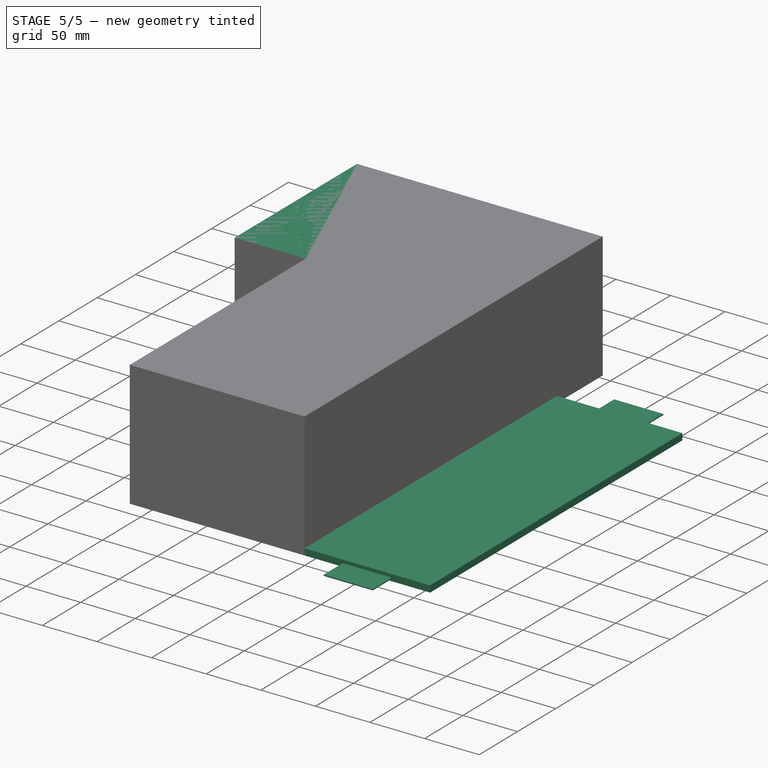
[diagram: stage 5 of 5 — iso view after this stage's code; geometry added in this stage tinted green]
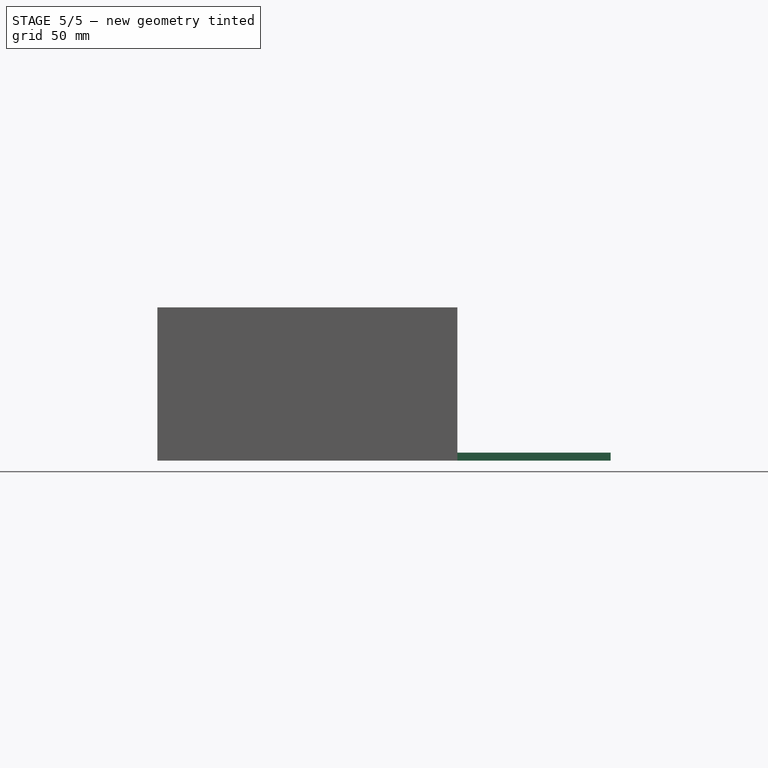
[diagram: stage 5 of 5 — front view after this stage's code; geometry added in this stage tinted green]
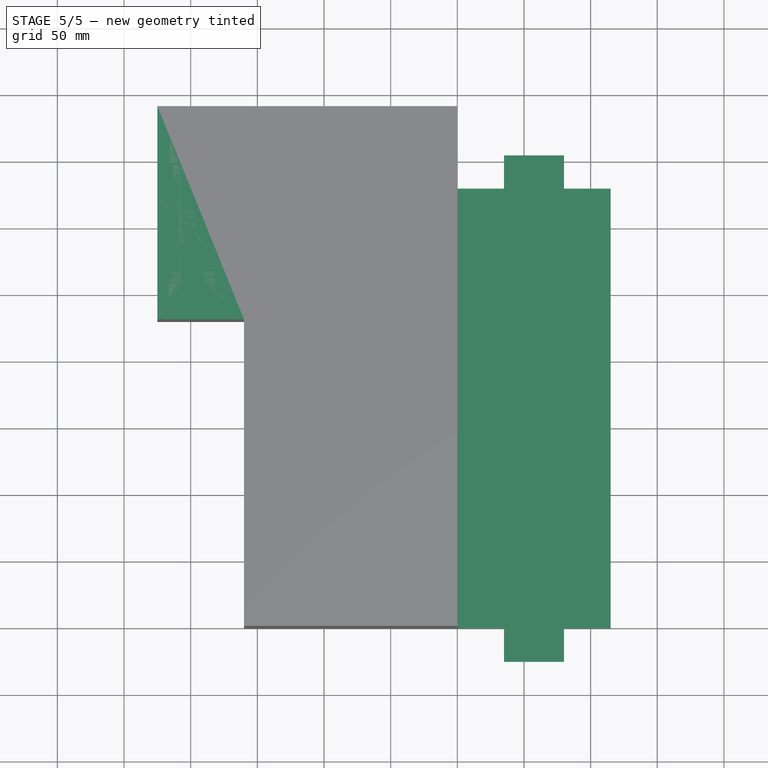
[diagram: stage 5 of 5 — top view after this stage's code; geometry added in this stage tinted green]
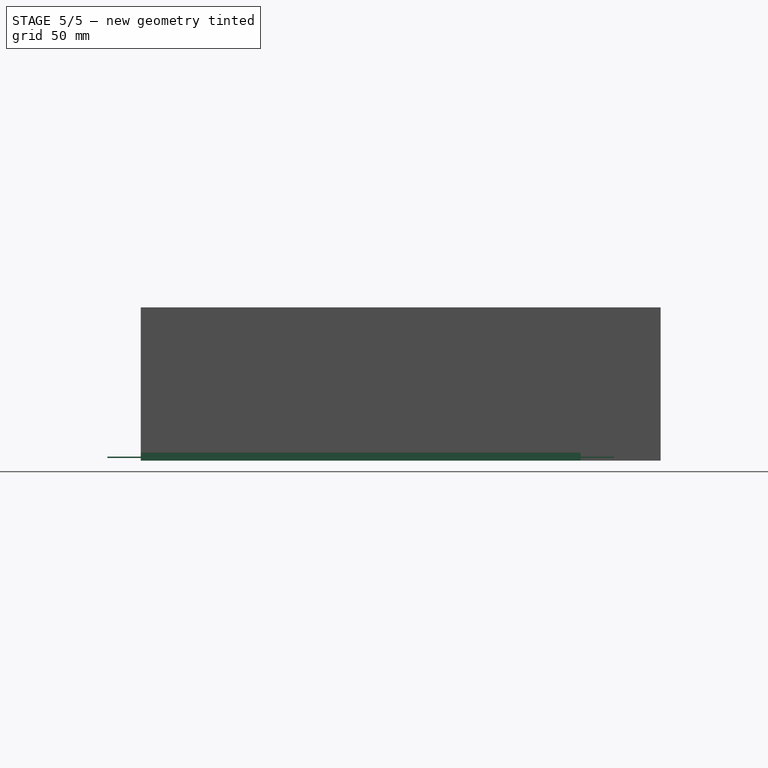
[diagram: stage 5 of 5 — right view after this stage's code; geometry added in this stage tinted green]
FEATURE [Sketcher::SketchObject] Sketch
  MapMode = 5
  Support = -> [XY_Plane]
  sketch-geometry (6):
    g0: LineSegment StartX=0 StartY=0 StartZ=0 EndX=0 EndY=390 EndZ=0
    g1: LineSegment StartX=0 StartY=0 StartZ=0 EndX=-160 EndY=0 EndZ=0
    g2: LineSegment StartX=-160 StartY=0 StartZ=0 EndX=-160 EndY=230 EndZ=0
    g3: LineSegment StartX=0 StartY=390 StartZ=0 EndX=-225 EndY=390 EndZ=0
    g4: LineSegment StartX=-160 StartY=230 StartZ=0 EndX=-225 EndY=230 EndZ=0
    g5: LineSegment StartX=-225 StartY=390 StartZ=0 EndX=-225 EndY=230 EndZ=0
  constraints (17):
    c: Coincident(g0,g-1)
    c: Vertical(g0)
    c: DistanceY(g0,g0) = 390
    c: Coincident(g1,g0)
    c: Horizontal(g1)
    c: DistanceX(g1,g1) = 160
    c: Coincident(g2,g1)
    c: Vertical(g2)
    c: DistanceY(g2,g2) = 230
    c: Coincident(g3,g0)
    c: Horizontal(g3)
    c: DistanceX(g3,g3) = 225
    c: Coincident(g4,g2)
    c: Horizontal(g4)
    c: DistanceX(g4,g4) = 65
    c: Coincident(g5,g3)
    c: Coincident(g5,g4)
FEATURE [PartDesign::Pad] Pad
  Length = 115
  Length2 = 0
  Profile = -> Sketch
  Type = 0
FEATURE [PartDesign::Body] Body
  Group = -> [Sketch,Pad]
  Origin = -> Origin
  Tip = -> Pad
FEATURE [Part::Feature] User_Library_Power_outlet_with_flange_230V_AC  label="230V_AC"
  Placement = pos=(-199,275,118) rot=(0,0,1;1.5708rad)
  shape: bbox 22.4 x 51.01 x 26.9 mm, 136 faces, 0 solids (baked)
FEATURE [Part::Box] Box  label="保护板"
  AttacherType = Attacher::AttachEngine3D
  Height = 65
  Length = 16
  Placement = pos=(-170,250,0) rot=(0,0,1;0rad)
  Width = 110
FEATURE [Part::Box] Box001  label="电池"
  AttacherType = Attacher::AttachEngine3D
  Height = 6
  Length = 115
  Width = 330
FEATURE [Part::Cylinder] Cylinder  label="圆柱体"
  Angle = 360
  AttacherType = Attacher::AttachEngine3D
  Height = 10
  Placement = pos=(-208,320,105) rot=(0,0,1;0rad)
  Radius = 1.5
FEATURE [Part::Cylinder] Cylinder001  label="圆柱体001"
  Angle = 360
  AttacherType = Attacher::AttachEngine3D
  Height = 10
  Placement = pos=(-208,350,105) rot=(0,0,1;0rad)
  Radius = 1.5
FEATURE [Part::MultiFuse] Fusion
  Shapes = -> [Cylinder001,Cylinder]
FEATURE [Drawing::FeaturePage] Page001
  EditableTexts = AUTHOR NAME | DRAWING TITLE | FreeCAD DRAWING | A4 | X / Y | SCALE | PN | DN | DD/MM/YYYY | REV A
  Template = <path>
FEATURE [Drawing::FeaturePage] Page
  EditableTexts = gdzhang | 2018-11-20 | SUPERVISOR NAME | CHECK DATE | SCALE | WEIGHT | NUMBER | SHEET
  Group = -> [Ortho,Ortho001,Ortho002,Ortho003,Ortho004,Ortho005,Ortho006,dim001,dim002,dim003,dim004,dim005,dim006,dim007,dim008,dim009,dim010,dim011,dim012,dim013,dim014,dim015,dim016,dimStack001,dimStack002,dia001,dim017,dimStack003,dimStack004,dimStack005,Page001]
  Template = <path>
FEATURE [Part::Box] Box004  label="立方体001"
  AttacherType = Attacher::AttachEngine3D
  Height = 1
  Length = 45
  Placement = pos=(35,-25,2) rot=(0,0,1;0rad)
  Width = 25
FEATURE [Part::Box] Box005  label="立方体002"
  AttacherType = Attacher::AttachEngine3D
  Height = 1
  Length = 45
  Placement = pos=(35,330,2) rot=(0,0,1;0rad)
  Width = 25
FEATURE [Part::MultiFuse] Fusion003  label="电池001"
  Shapes = -> [Box005,Box004,Box001]
FEATURE [Part::Feature] Fusion003001  label="电池1"
  shape: bbox 115 x 380 x 6 mm, 16 faces (baked)
FEATURE [Part::FeaturePython] Array  # Draft array (typed FeaturePython)
  Angle = 360
  ArrayType = 0
  Axis = (0,0,1)
  Base = -> Fusion003001
  Center = (0,0,0)
  Fuse = false
  IntervalAxis = (0,0,0)
  IntervalX = (1,0,0)
  IntervalY = (0,1,0)
  IntervalZ = (0,0,7.2)
  NumberPolar = 1
  NumberX = 1
  NumberY = 1
  NumberZ = 13
  Placement = pos=(-130,30,10) rot=(0,0,1;0rad)
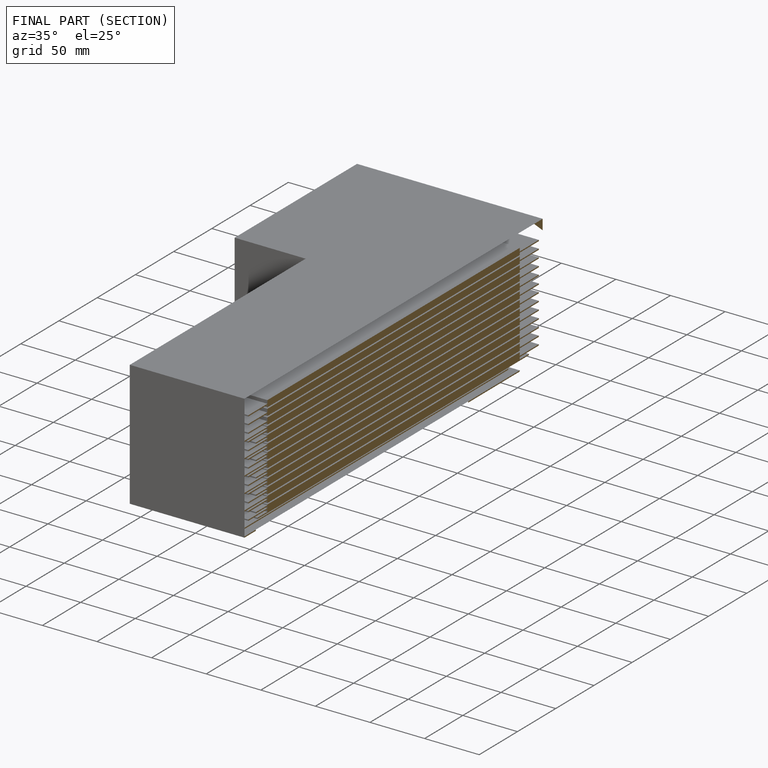
[diagram: finished part — half-section view (interior)]
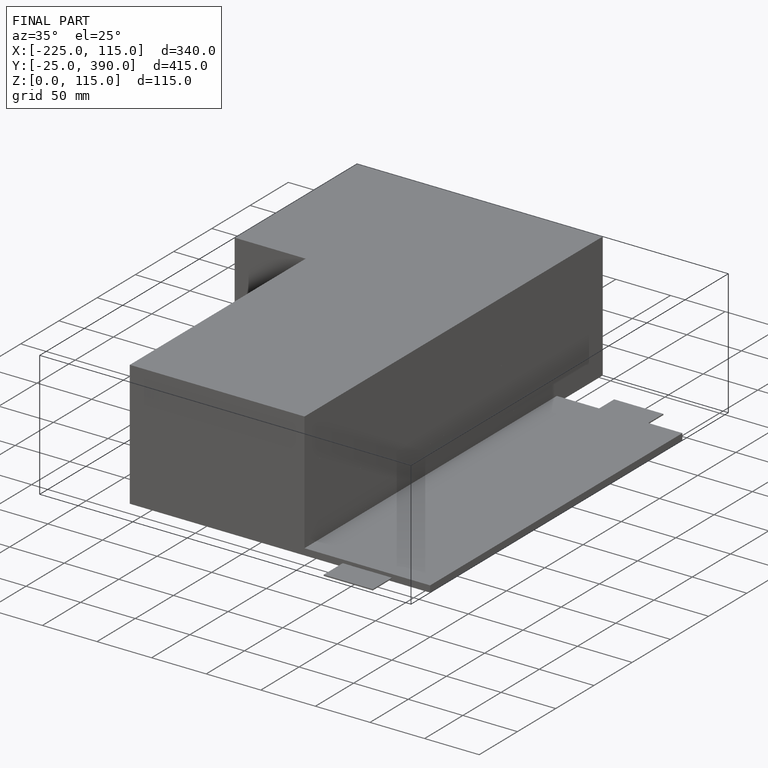
[diagram: finished part — iso view with bounding-box wireframe]
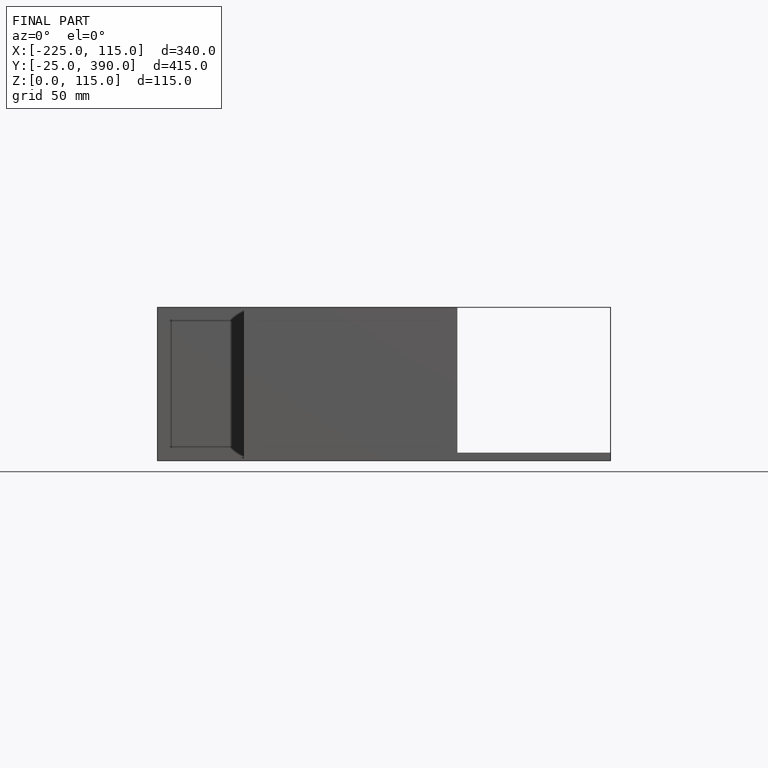
[diagram: finished part — front view with bounding-box wireframe]
